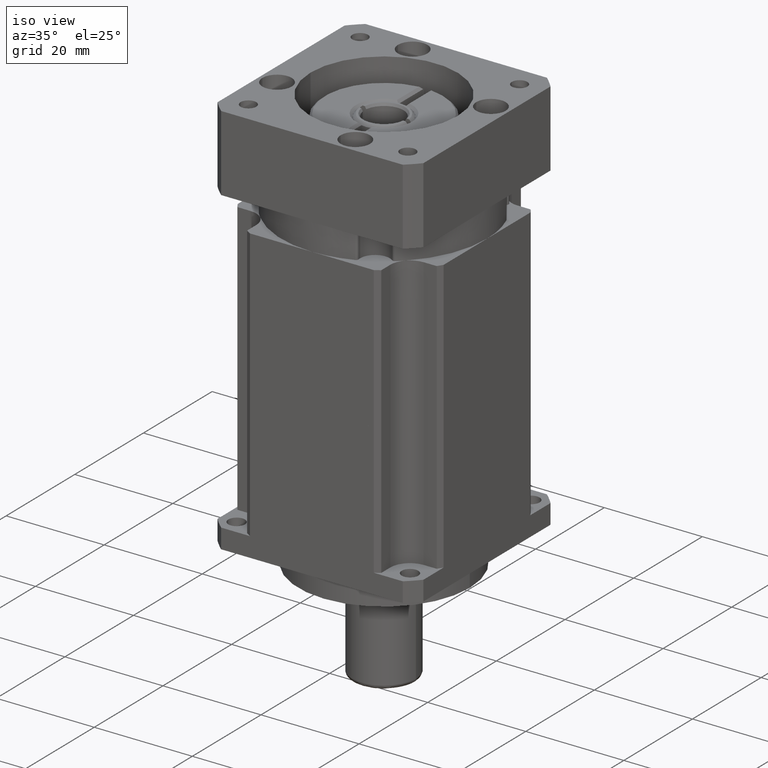
[diagram: clean part render]
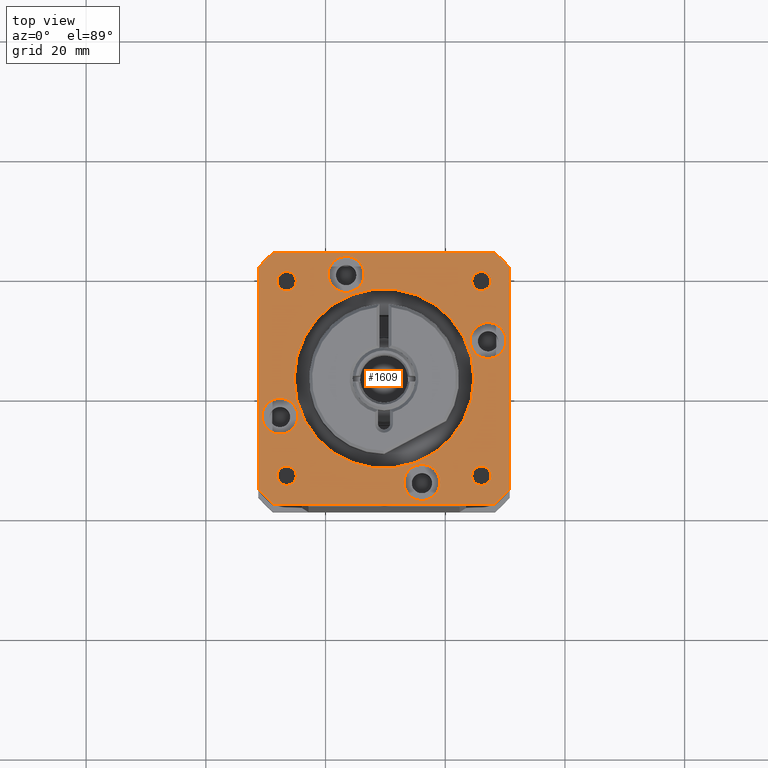
[diagram: tour spotlight — one face highlighted and labeled with its STEP entity id]
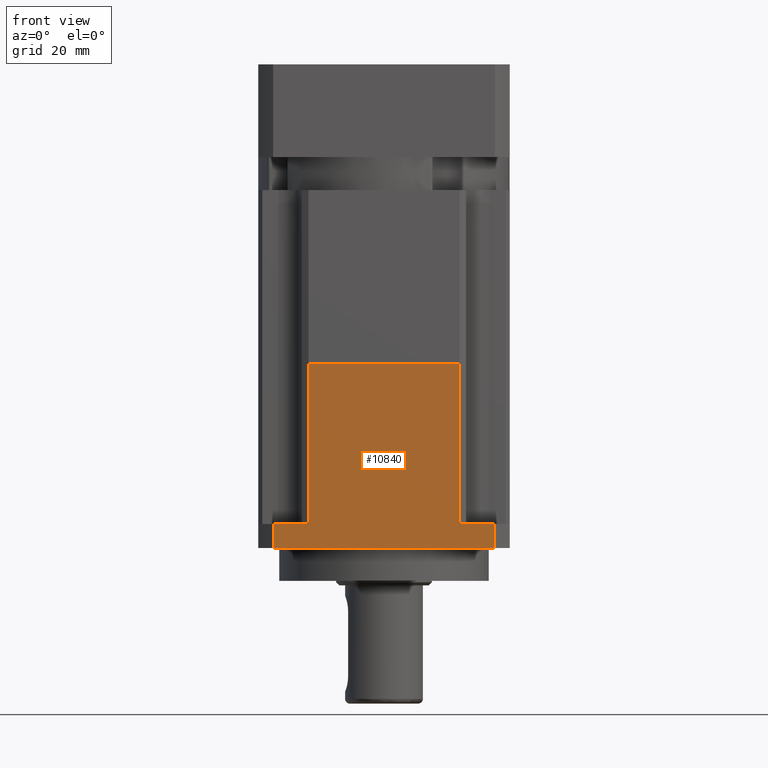
[diagram: tour spotlight — one face highlighted and labeled with its STEP entity id]
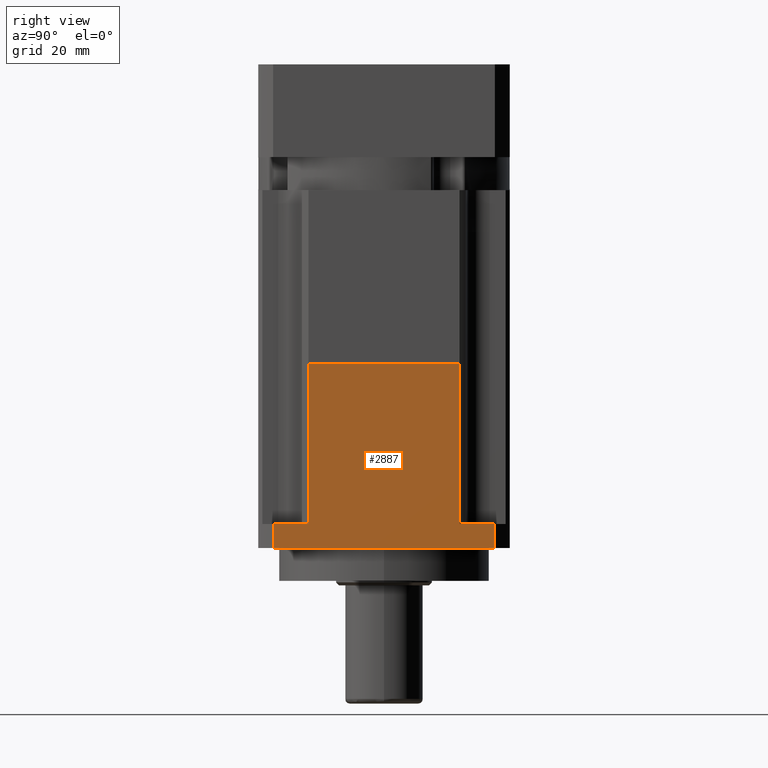
[diagram: tour spotlight — one face highlighted and labeled with its STEP entity id]
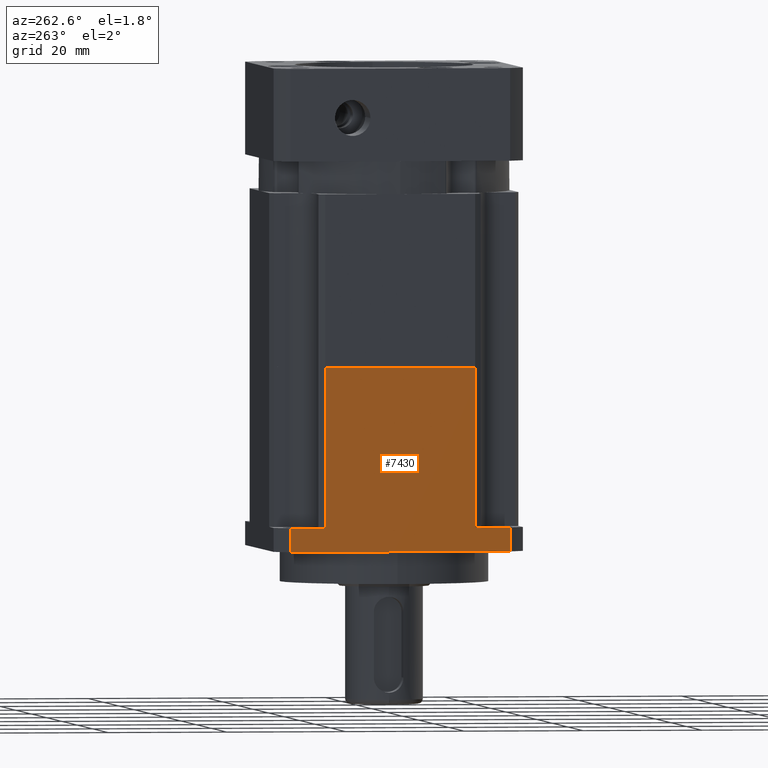
[diagram: tour spotlight — one face highlighted and labeled with its STEP entity id]
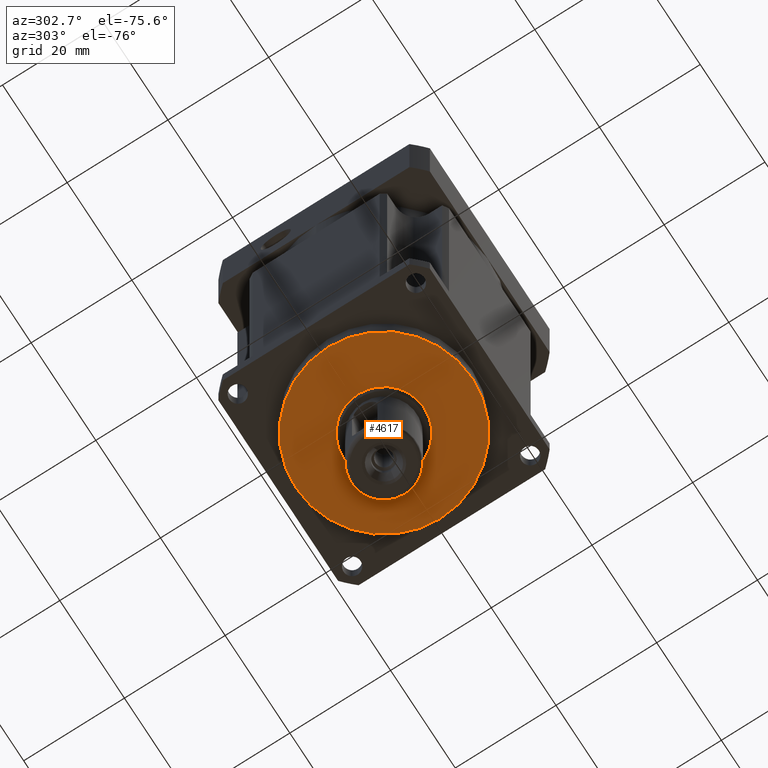
[diagram: tour spotlight — one face highlighted and labeled with its STEP entity id]
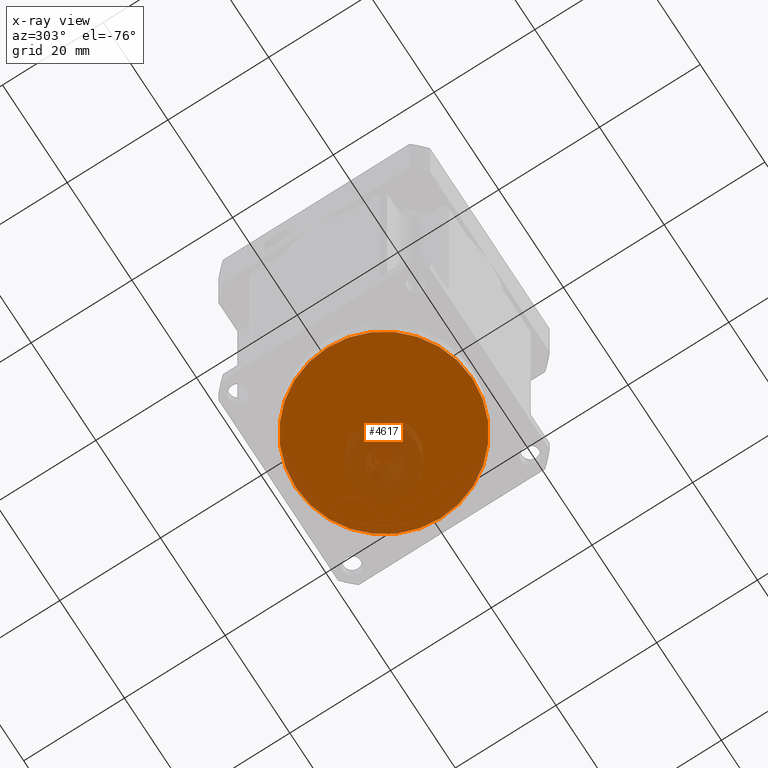
[diagram: x-ray of the same camera — body ghosted, this tour face saturated]
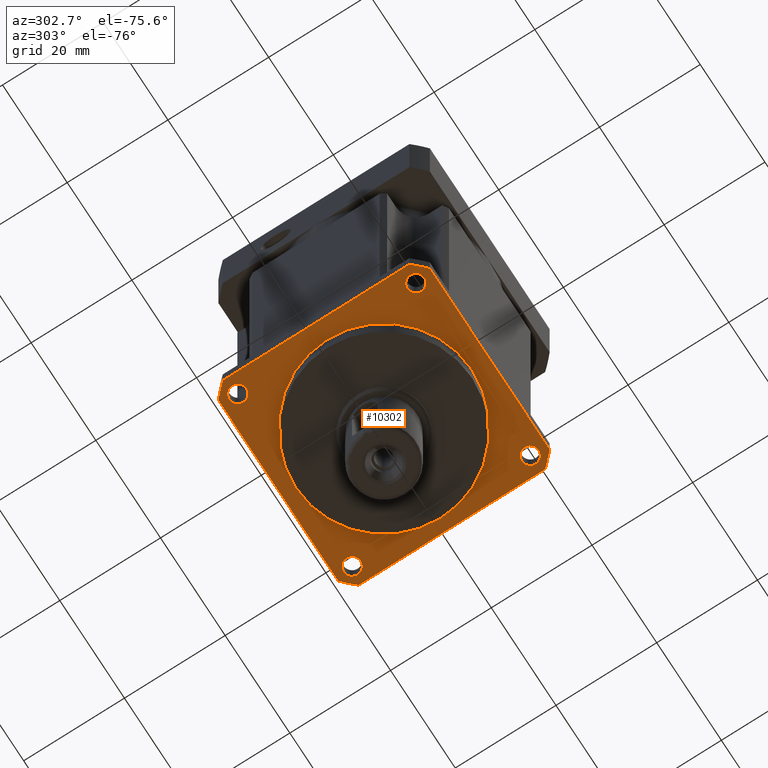
[diagram: tour spotlight — one face highlighted and labeled with its STEP entity id]
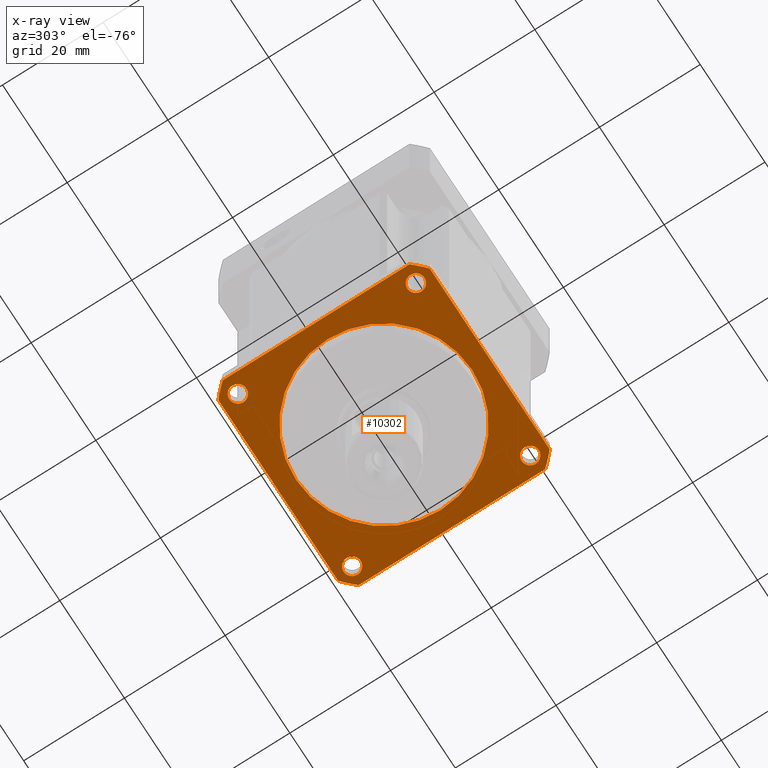
[diagram: x-ray of the same camera — body ghosted, this tour face saturated]
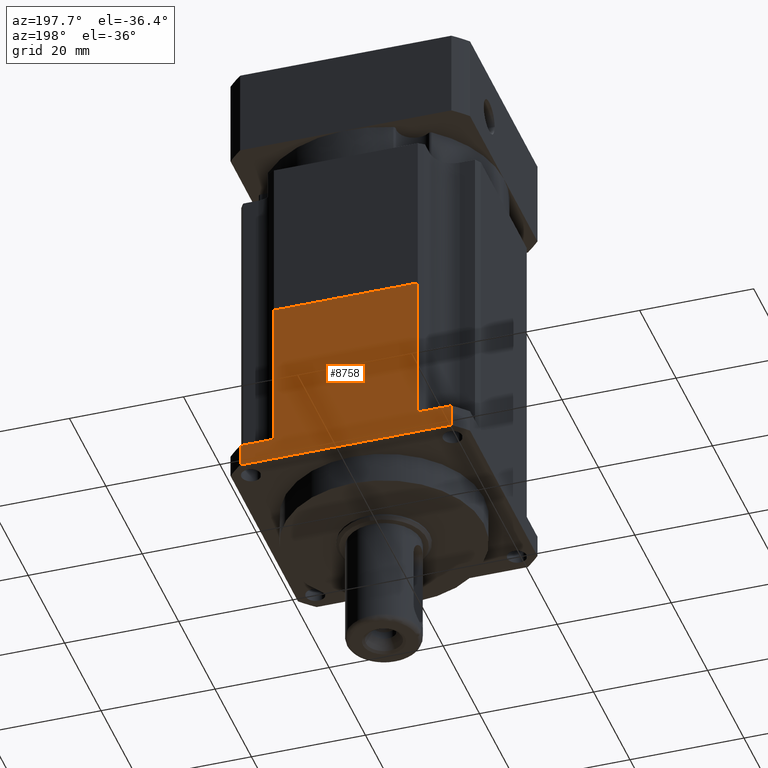
[diagram: tour spotlight — one face highlighted and labeled with its STEP entity id]
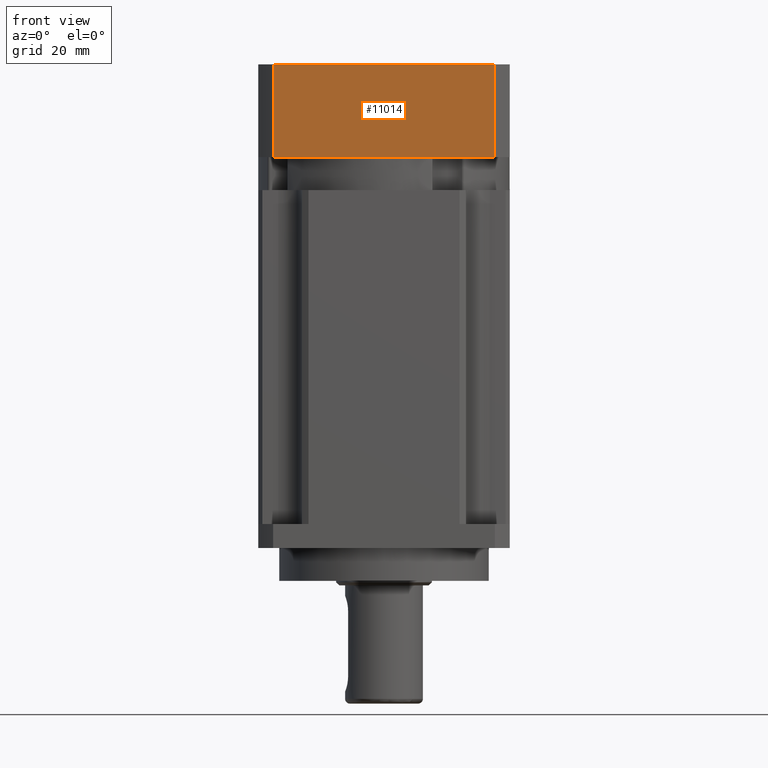
[diagram: tour spotlight — one face highlighted and labeled with its STEP entity id]
A machine part: a face-by-face anatomy tour. The part has 325 B-rep faces; the first image is the clean iso view, then the 8 largest visible faces are spotlighted one at a time (largest first), each with its STEP entity span.

Face 1 — top view, entity #1609. In plain terms, the highlighted planar face has unit normal (0, 0, 1).
Definition (entity closure, byte-faithful):
#148 = DIRECTION ( 'NONE',  ( 0.0000000000000000000, 0.0000000000000000000, -1.000000000000000000 ) ) ;
#328 = VERTEX_POINT ( 'NONE', #4362 ) ;
#382 = CARTESIAN_POINT ( 'NONE',  ( 3.469446951953614200E-015, 15.50000000000000000, 6.938893903907228400E-015 ) ) ;
#400 = DIRECTION ( 'NONE',  ( 0.0000000000000000000, 0.0000000000000000000, 1.000000000000000000 ) ) ;
#461 = DIRECTION ( 'NONE',  ( 0.0000000000000000000, 1.000000000000000000, 0.0000000000000000000 ) ) ;
#513 = CARTESIAN_POINT ( 'NONE',  ( 3.469446951953614200E-015, 15.50000000000000000, 6.938893903907228400E-015 ) ) ;
#529 = CIRCLE ( 'NONE', #9342, 15.00000000000000000 ) ;
#627 = CARTESIAN_POINT ( 'NONE',  ( -16.26345596729059300, 15.50000000000000000, 16.26345596729058600 ) ) ;
#675 = DIRECTION ( 'NONE',  ( -1.000000000000000000, 0.0000000000000000000, 1.040834085586084600E-014 ) ) ;
#754 = CARTESIAN_POINT ( 'NONE',  ( -6.327372651524825600, 15.50000000000000000, -14.38431348453932100 ) ) ;
#755 = DIRECTION ( 'NONE',  ( 1.000000000000000000, 0.0000000000000000000, -4.336808689942015400E-015 ) ) ;
#808 = CIRCLE ( 'NONE', #5423, 27.99999999999999300 ) ;
#811 = ORIENTED_EDGE ( 'NONE', *, *, #4121, .F. ) ;
#822 = CARTESIAN_POINT ( 'NONE',  ( 6.327372651524825600, 15.50000000000000000, 20.38431348453931900 ) ) ;
#836 = EDGE_CURVE ( 'NONE', #4231, #4161, #6305, .T. ) ;
#896 = CARTESIAN_POINT ( 'NONE',  ( -6.327372651524825600, 15.50000000000000000, -20.38431348453931900 ) ) ;
#899 = VERTEX_POINT ( 'NONE', #11070 ) ;
#950 = EDGE_CURVE ( 'NONE', #899, #8193, #8572, .T. ) ;
#966 = CIRCLE ( 'NONE', #2573, 1.600000000000000800 ) ;
#1085 = DIRECTION ( 'NONE',  ( 0.0000000000000000000, 0.0000000000000000000, -1.000000000000000000 ) ) ;
#1100 = EDGE_CURVE ( 'NONE', #4379, #328, #5325, .T. ) ;
#1148 = CARTESIAN_POINT ( 'NONE',  ( -17.38431348453929800, 15.50000000000000000, 3.327372651524886500 ) ) ;
#1182 = EDGE_CURVE ( 'NONE', #2961, #4379, #808, .T. ) ;
#1212 = FACE_OUTER_BOUND ( 'NONE', #11444, .T. ) ;
#1289 = CARTESIAN_POINT ( 'NONE',  ( -20.99999999999998900, 15.50000000000000000, -18.52025917745212500 ) ) ;
#1394 = DIRECTION ( 'NONE',  ( -1.000000000000000000, 0.0000000000000000000, 1.040834085586084600E-014 ) ) ;
#1406 = EDGE_CURVE ( 'NONE', #10578, #2685, #7291, .T. ) ;
#1562 = EDGE_LOOP ( 'NONE', ( #4489, #4669 ) ) ;
#1581 = CARTESIAN_POINT ( 'NONE',  ( 16.26345596729059300, 15.50000000000000000, -14.66345596729058400 ) ) ;
#1609 = ADVANCED_FACE ( 'NONE', ( #9398, #2214, #8831, #6724, #4316, #11218, #7998, #7715, #1212, #10223 ), #6736, .T. ) ;
#1626 = CARTESIAN_POINT ( 'NONE',  ( -16.26345596729059300, 15.50000000000000000, 16.26345596729058600 ) ) ;
#1654 = CARTESIAN_POINT ( 'NONE',  ( 16.26345596729064300, 15.50000000000000000, 16.26345596729054000 ) ) ;
#1722 = EDGE_LOOP ( 'NONE', ( #9312, #8273 ) ) ;
#1760 = CIRCLE ( 'NONE', #11476, 2.999999999999999100 ) ;
#1777 = DIRECTION ( 'NONE',  ( 0.0000000000000000000, 0.0000000000000000000, 1.000000000000000000 ) ) ;
#1791 = AXIS2_PLACEMENT_3D ( 'NONE', #2221, #7626, #8530 ) ;
#1859 = AXIS2_PLACEMENT_3D ( 'NONE', #627, #4998, #8695 ) ;
#1915 = VERTEX_POINT ( 'NONE', #9763 ) ;
#1981 = ORIENTED_EDGE ( 'NONE', *, *, #2156, .F. ) ;
#1985 = CARTESIAN_POINT ( 'NONE',  ( 17.38431348453925600, 15.50000000000000000, -6.327372651525007700 ) ) ;
#2008 = ORIENTED_EDGE ( 'NONE', *, *, #9482, .F. ) ;
#2156 = EDGE_CURVE ( 'NONE', #4716, #9263, #529, .T. ) ;
#2214 = FACE_BOUND ( 'NONE', #8914, .T. ) ;
#2221 = CARTESIAN_POINT ( 'NONE',  ( 3.469446951953614200E-015, 15.50000000000000000, 6.938893903907228400E-015 ) ) ;
#2314 = DIRECTION ( 'NONE',  ( -1.000000000000000000, 0.0000000000000000000, 1.084202172485504000E-014 ) ) ;
#2338 = CIRCLE ( 'NONE', #6660, 1.600000000000000800 ) ;
#2339 = DIRECTION ( 'NONE',  ( 0.0000000000000000000, 1.000000000000000000, 0.0000000000000000000 ) ) ;
#2381 = EDGE_CURVE ( 'NONE', #10076, #11117, #2505, .T. ) ;
#2400 = DIRECTION ( 'NONE',  ( 0.0000000000000000000, 1.000000000000000000, 0.0000000000000000000 ) ) ;
#2401 = ORIENTED_EDGE ( 'NONE', *, *, #1406, .F. ) ;
#2478 = CIRCLE ( 'NONE', #8222, 1.600000000000000800 ) ;
#2504 = CARTESIAN_POINT ( 'NONE',  ( -6.327372651524825600, 15.50000000000000000, -17.38431348453931900 ) ) ;
#2505 = CIRCLE ( 'NONE', #4901, 2.999999999999999100 ) ;
#2544 = DIRECTION ( 'NONE',  ( 0.0000000000000000000, 0.0000000000000000000, 1.000000000000000000 ) ) ;
#2556 = CIRCLE ( 'NONE', #3409, 27.99999999999999600 ) ;
#2570 = ORIENTED_EDGE ( 'NONE', *, *, #11528, .F. ) ;
#2573 = AXIS2_PLACEMENT_3D ( 'NONE', #6064, #2575, #7100 ) ;
#2575 = DIRECTION ( 'NONE',  ( 0.0000000000000000000, 1.000000000000000000, 0.0000000000000000000 ) ) ;
#2630 = CARTESIAN_POINT ( 'NONE',  ( -17.38431348453929800, 15.50000000000000000, 6.327372651524886900 ) ) ;
#2685 = VERTEX_POINT ( 'NONE', #9114 ) ;
#2719 = AXIS2_PLACEMENT_3D ( 'NONE', #3797, #4705, #10990 ) ;
#2772 = CARTESIAN_POINT ( 'NONE',  ( 16.26345596729064300, 15.50000000000000000, 14.66345596729053600 ) ) ;
#2814 = EDGE_CURVE ( 'NONE', #5846, #6074, #4590, .T. ) ;
#2854 = DIRECTION ( 'NONE',  ( -1.000000000000000000, 0.0000000000000000000, 1.084202172485504000E-014 ) ) ;
#2907 = DIRECTION ( 'NONE',  ( 0.0000000000000000000, 1.000000000000000000, 0.0000000000000000000 ) ) ;
#2956 = LINE ( 'NONE', #10498, #7602 ) ;
#2961 = VERTEX_POINT ( 'NONE', #5378 ) ;
#2987 = CIRCLE ( 'NONE', #9733, 1.600000000000000800 ) ;
#3245 = DIRECTION ( 'NONE',  ( -1.000000000000000000, -0.0000000000000000000, -0.0000000000000000000 ) ) ;
#3338 = DIRECTION ( 'NONE',  ( 0.0000000000000000000, 0.0000000000000000000, -1.000000000000000000 ) ) ;
#3409 = AXIS2_PLACEMENT_3D ( 'NONE', #6861, #7928, #7806 ) ;
#3426 = CARTESIAN_POINT ( 'NONE',  ( 6.327372651524825600, 15.50000000000000000, 14.38431348453932100 ) ) ;
#3428 = AXIS2_PLACEMENT_3D ( 'NONE', #2504, #8793, #10441 ) ;
#3503 = EDGE_CURVE ( 'NONE', #9474, #8077, #2478, .T. ) ;
#3529 = DIRECTION ( 'NONE',  ( 1.000000000000000000, 0.0000000000000000000, -3.469446951953615400E-015 ) ) ;
#3563 = CARTESIAN_POINT ( 'NONE',  ( -20.99999999999999600, 15.50000000000000000, -18.52025917745211500 ) ) ;
#3724 = EDGE_CURVE ( 'NONE', #10750, #3739, #4298, .T. ) ;
#3739 = VERTEX_POINT ( 'NONE', #3740 ) ;
#3740 = CARTESIAN_POINT ( 'NONE',  ( -17.38431348453929800, 15.50000000000000000, 9.327372651524886000 ) ) ;
#3797 = CARTESIAN_POINT ( 'NONE',  ( 16.26345596729059300, 15.50000000000000000, -16.26345596729058600 ) ) ;
#3839 = AXIS2_PLACEMENT_3D ( 'NONE', #10746, #5360, #11634 ) ;
#3844 = EDGE_CURVE ( 'NONE', #4161, #4231, #1760, .T. ) ;
#3937 = LINE ( 'NONE', #3563, #8733 ) ;
#4001 = ORIENTED_EDGE ( 'NONE', *, *, #836, .F. ) ;
#4026 = CARTESIAN_POINT ( 'NONE',  ( 16.26345596729059300, 15.50000000000000000, -17.86345596729058700 ) ) ;
#4110 = CARTESIAN_POINT ( 'NONE',  ( 5.306417150674643800E-015, 15.50000000000000000, 15.00000000000000700 ) ) ;
#4121 = EDGE_CURVE ( 'NONE', #2685, #10578, #2338, .T. ) ;
#4161 = VERTEX_POINT ( 'NONE', #822 ) ;
#4231 = VERTEX_POINT ( 'NONE', #3426 ) ;
#4261 = CARTESIAN_POINT ( 'NONE',  ( -18.52025917745212500, 15.50000000000000000, -20.99999999999998900 ) ) ;
#4298 = CIRCLE ( 'NONE', #3839, 2.999999999999999100 ) ;
#4316 = FACE_BOUND ( 'NONE', #1722, .T. ) ;
#4338 = EDGE_CURVE ( 'NONE', #8905, #5820, #7975, .T. ) ;
#4357 = ORIENTED_EDGE ( 'NONE', *, *, #5266, .T. ) ;
#4362 = CARTESIAN_POINT ( 'NONE',  ( -18.52025917745212500, 15.50000000000000000, -20.99999999999998900 ) ) ;
#4379 = VERTEX_POINT ( 'NONE', #9506 ) ;
#4489 = ORIENTED_EDGE ( 'NONE', *, *, #9917, .F. ) ;
#4539 = EDGE_CURVE ( 'NONE', #11117, #10076, #7405, .T. ) ;
#4558 = EDGE_CURVE ( 'NONE', #7059, #5833, #10349, .T. ) ;
#4590 = CIRCLE ( 'NONE', #2719, 1.600000000000000800 ) ;
#4599 = CARTESIAN_POINT ( 'NONE',  ( 6.327372651524825600, 15.50000000000000000, 17.38431348453931900 ) ) ;
#4647 = EDGE_LOOP ( 'NONE', ( #811, #2401 ) ) ;
#4669 = ORIENTED_EDGE ( 'NONE', *, *, #2814, .F. ) ;
#4705 = DIRECTION ( 'NONE',  ( 0.0000000000000000000, 1.000000000000000000, 0.0000000000000000000 ) ) ;
#4716 = VERTEX_POINT ( 'NONE', #4110 ) ;
#4802 = ORIENTED_EDGE ( 'NONE', *, *, #3724, .F. ) ;
#4901 = AXIS2_PLACEMENT_3D ( 'NONE', #11473, #5272, #6249 ) ;
#4998 = DIRECTION ( 'NONE',  ( 0.0000000000000000000, 1.000000000000000000, 0.0000000000000000000 ) ) ;
#5007 = CARTESIAN_POINT ( 'NONE',  ( 20.99999999999998900, 15.50000000000000000, -18.52025917745212900 ) ) ;
#5039 = AXIS2_PLACEMENT_3D ( 'NONE', #5581, #9113, #1085 ) ;
#5135 = CIRCLE ( 'NONE', #8775, 15.00000000000000000 ) ;
#5179 = EDGE_CURVE ( 'NONE', #9263, #4716, #5135, .T. ) ;
#5266 = EDGE_CURVE ( 'NONE', #1915, #2961, #8377, .T. ) ;
#5272 = DIRECTION ( 'NONE',  ( 0.0000000000000000000, 1.000000000000000000, 0.0000000000000000000 ) ) ;
#5325 = LINE ( 'NONE', #4261, #5738 ) ;
#5360 = DIRECTION ( 'NONE',  ( 0.0000000000000000000, 1.000000000000000000, 0.0000000000000000000 ) ) ;
#5378 = CARTESIAN_POINT ( 'NONE',  ( 20.99999999999998900, 15.50000000000000000, -18.52025917745212900 ) ) ;
#5396 = ORIENTED_EDGE ( 'NONE', *, *, #8553, .F. ) ;
#5423 = AXIS2_PLACEMENT_3D ( 'NONE', #7897, #10554, #2544 ) ;
#5551 = CARTESIAN_POINT ( 'NONE',  ( 17.38431348453925600, 15.50000000000000000, -3.327372651525007700 ) ) ;
#5552 = EDGE_LOOP ( 'NONE', ( #7799, #2008 ) ) ;
#5581 = CARTESIAN_POINT ( 'NONE',  ( 6.327372651524825600, 15.50000000000000000, 17.38431348453931900 ) ) ;
#5673 = ORIENTED_EDGE ( 'NONE', *, *, #4539, .F. ) ;
#5706 = ORIENTED_EDGE ( 'NONE', *, *, #950, .T. ) ;
#5738 = VECTOR ( 'NONE', #3245, 1000.000000000000000 ) ;
#5804 = CARTESIAN_POINT ( 'NONE',  ( -16.26345596729059300, 15.50000000000000000, 17.86345596729058700 ) ) ;
#5820 = VERTEX_POINT ( 'NONE', #11254 ) ;
#5833 = VERTEX_POINT ( 'NONE', #5804 ) ;
#5846 = VERTEX_POINT ( 'NONE', #4026 ) ;
#5854 = VERTEX_POINT ( 'NONE', #6749 ) ;
#6050 = DIRECTION ( 'NONE',  ( 0.0000000000000000000, 0.0000000000000000000, 1.000000000000000000 ) ) ;
#6064 = CARTESIAN_POINT ( 'NONE',  ( 16.26345596729064300, 15.50000000000000000, 16.26345596729054000 ) ) ;
#6074 = VERTEX_POINT ( 'NONE', #1581 ) ;
#6249 = DIRECTION ( 'NONE',  ( 0.0000000000000000000, 0.0000000000000000000, 1.000000000000000000 ) ) ;
#6265 = VECTOR ( 'NONE', #6705, 1000.000000000000000 ) ;
#6277 = CARTESIAN_POINT ( 'NONE',  ( -16.26345596729075600, 15.50000000000000000, -16.26345596729042600 ) ) ;
#6305 = CIRCLE ( 'NONE', #5039, 2.999999999999999100 ) ;
#6393 = EDGE_LOOP ( 'NONE', ( #8950, #1981 ) ) ;
#6440 = AXIS2_PLACEMENT_3D ( 'NONE', #1626, #2339, #9543 ) ;
#6538 = CARTESIAN_POINT ( 'NONE',  ( -18.52025917745211800, 15.50000000000000000, 21.00000000000000700 ) ) ;
#6660 = AXIS2_PLACEMENT_3D ( 'NONE', #8729, #10412, #2314 ) ;
#6705 = DIRECTION ( 'NONE',  ( -0.0000000000000000000, -0.0000000000000000000, -1.000000000000000000 ) ) ;
#6724 = FACE_BOUND ( 'NONE', #10165, .T. ) ;
#6736 = PLANE ( 'NONE',  #8589 ) ;
#6740 = CARTESIAN_POINT ( 'NONE',  ( 3.469446951953614200E-015, 15.50000000000000000, -14.99999999999999300 ) ) ;
#6749 = CARTESIAN_POINT ( 'NONE',  ( 18.52025917745212900, 15.50000000000000000, 21.00000000000000400 ) ) ;
#6816 = DIRECTION ( 'NONE',  ( 1.000000000000000000, 0.0000000000000000000, 0.0000000000000000000 ) ) ;
#6819 = DIRECTION ( 'NONE',  ( 0.0000000000000000000, 1.000000000000000000, 0.0000000000000000000 ) ) ;
#6861 = CARTESIAN_POINT ( 'NONE',  ( 3.469446951953614200E-015, 15.50000000000000000, 6.938893903907228400E-015 ) ) ;
#6884 = CARTESIAN_POINT ( 'NONE',  ( 16.26345596729059300, 15.50000000000000000, -16.26345596729058600 ) ) ;
#6922 = DIRECTION ( 'NONE',  ( 0.0000000000000000000, 1.000000000000000000, 0.0000000000000000000 ) ) ;
#7003 = ORIENTED_EDGE ( 'NONE', *, *, #2381, .F. ) ;
#7059 = VERTEX_POINT ( 'NONE', #11323 ) ;
#7093 = ORIENTED_EDGE ( 'NONE', *, *, #1100, .T. ) ;
#7100 = DIRECTION ( 'NONE',  ( 1.000000000000000000, 0.0000000000000000000, -4.336808689942015400E-015 ) ) ;
#7291 = CIRCLE ( 'NONE', #9642, 1.600000000000000800 ) ;
#7405 = CIRCLE ( 'NONE', #3428, 2.999999999999999100 ) ;
#7461 = CIRCLE ( 'NONE', #10563, 2.999999999999999100 ) ;
#7472 = CARTESIAN_POINT ( 'NONE',  ( 3.469446951953614200E-015, 15.50000000000000000, 6.938893903907228400E-015 ) ) ;
#7536 = ORIENTED_EDGE ( 'NONE', *, *, #8490, .T. ) ;
#7602 = VECTOR ( 'NONE', #6816, 1000.000000000000000 ) ;
#7626 = DIRECTION ( 'NONE',  ( 0.0000000000000000000, 1.000000000000000000, 0.0000000000000000000 ) ) ;
#7682 = DIRECTION ( 'NONE',  ( 0.0000000000000000000, 0.0000000000000000000, 1.000000000000000000 ) ) ;
#7715 = FACE_BOUND ( 'NONE', #9279, .T. ) ;
#7771 = AXIS2_PLACEMENT_3D ( 'NONE', #7472, #6922, #6050 ) ;
#7786 = ORIENTED_EDGE ( 'NONE', *, *, #10904, .T. ) ;
#7799 = ORIENTED_EDGE ( 'NONE', *, *, #4338, .F. ) ;
#7806 = DIRECTION ( 'NONE',  ( 0.0000000000000000000, 0.0000000000000000000, 1.000000000000000000 ) ) ;
#7829 = DIRECTION ( 'NONE',  ( 0.0000000000000000000, 1.000000000000000000, 0.0000000000000000000 ) ) ;
#7881 = CARTESIAN_POINT ( 'NONE',  ( 16.26345596729064300, 15.50000000000000000, 17.86345596729054100 ) ) ;
#7897 = CARTESIAN_POINT ( 'NONE',  ( 3.469446951953614200E-015, 15.50000000000000000, 6.938893903907228400E-015 ) ) ;
#7926 = CARTESIAN_POINT ( 'NONE',  ( 17.38431348453925600, 15.50000000000000000, -6.327372651525007700 ) ) ;
#7928 = DIRECTION ( 'NONE',  ( 0.0000000000000000000, 1.000000000000000000, 0.0000000000000000000 ) ) ;
#7975 = CIRCLE ( 'NONE', #8917, 2.999999999999999100 ) ;
#7998 = FACE_BOUND ( 'NONE', #4647, .T. ) ;
#8077 = VERTEX_POINT ( 'NONE', #2772 ) ;
#8148 = CIRCLE ( 'NONE', #8374, 2.999999999999999100 ) ;
#8157 = CIRCLE ( 'NONE', #1859, 1.600000000000000800 ) ;
#8163 = EDGE_CURVE ( 'NONE', #11397, #899, #3937, .T. ) ;
#8193 = VERTEX_POINT ( 'NONE', #6538 ) ;
#8222 = AXIS2_PLACEMENT_3D ( 'NONE', #1654, #11489, #755 ) ;
#8273 = ORIENTED_EDGE ( 'NONE', *, *, #9467, .F. ) ;
#8344 = DIRECTION ( 'NONE',  ( 0.0000000000000000000, 1.000000000000000000, 0.0000000000000000000 ) ) ;
#8374 = AXIS2_PLACEMENT_3D ( 'NONE', #7926, #2400, #675 ) ;
#8377 = LINE ( 'NONE', #5007, #6265 ) ;
#8490 = EDGE_CURVE ( 'NONE', #8193, #5854, #2956, .T. ) ;
#8512 = DIRECTION ( 'NONE',  ( 0.0000000000000000000, -0.0000000000000000000, 1.000000000000000000 ) ) ;
#8517 = CARTESIAN_POINT ( 'NONE',  ( 3.469446951953614200E-015, 15.50000000000000000, 6.938893903907228400E-015 ) ) ;
#8530 = DIRECTION ( 'NONE',  ( 0.0000000000000000000, 0.0000000000000000000, 1.000000000000000000 ) ) ;
#8553 = EDGE_CURVE ( 'NONE', #5833, #7059, #8157, .T. ) ;
#8572 = CIRCLE ( 'NONE', #1791, 27.99999999999999300 ) ;
#8589 = AXIS2_PLACEMENT_3D ( 'NONE', #513, #6819, #8512 ) ;
#8695 = DIRECTION ( 'NONE',  ( 0.0000000000000000000, 0.0000000000000000000, 1.000000000000000000 ) ) ;
#8729 = CARTESIAN_POINT ( 'NONE',  ( -16.26345596729075600, 15.50000000000000000, -16.26345596729042600 ) ) ;
#8733 = VECTOR ( 'NONE', #1777, 1000.000000000000000 ) ;
#8747 = EDGE_LOOP ( 'NONE', ( #2570, #4802 ) ) ;
#8775 = AXIS2_PLACEMENT_3D ( 'NONE', #8517, #11251, #400 ) ;
#8793 = DIRECTION ( 'NONE',  ( 0.0000000000000000000, 1.000000000000000000, 0.0000000000000000000 ) ) ;
#8831 = FACE_BOUND ( 'NONE', #5552, .T. ) ;
#8905 = VERTEX_POINT ( 'NONE', #5551 ) ;
#8914 = EDGE_LOOP ( 'NONE', ( #9507, #4001 ) ) ;
#8917 = AXIS2_PLACEMENT_3D ( 'NONE', #1985, #2907, #1394 ) ;
#8950 = ORIENTED_EDGE ( 'NONE', *, *, #5179, .F. ) ;
#9062 = DIRECTION ( 'NONE',  ( 0.0000000000000000000, 1.000000000000000000, 0.0000000000000000000 ) ) ;
#9113 = DIRECTION ( 'NONE',  ( 0.0000000000000000000, 1.000000000000000000, 0.0000000000000000000 ) ) ;
#9114 = CARTESIAN_POINT ( 'NONE',  ( -16.26345596729075600, 15.50000000000000000, -14.66345596729042300 ) ) ;
#9150 = EDGE_CURVE ( 'NONE', #5854, #1915, #9709, .T. ) ;
#9263 = VERTEX_POINT ( 'NONE', #6740 ) ;
#9279 = EDGE_LOOP ( 'NONE', ( #5396, #10012 ) ) ;
#9312 = ORIENTED_EDGE ( 'NONE', *, *, #3503, .F. ) ;
#9342 = AXIS2_PLACEMENT_3D ( 'NONE', #382, #461, #7682 ) ;
#9398 = FACE_BOUND ( 'NONE', #8747, .T. ) ;
#9423 = ORIENTED_EDGE ( 'NONE', *, *, #8163, .T. ) ;
#9467 = EDGE_CURVE ( 'NONE', #8077, #9474, #966, .T. ) ;
#9474 = VERTEX_POINT ( 'NONE', #7881 ) ;
#9477 = ORIENTED_EDGE ( 'NONE', *, *, #1182, .T. ) ;
#9482 = EDGE_CURVE ( 'NONE', #5820, #8905, #8148, .T. ) ;
#9506 = CARTESIAN_POINT ( 'NONE',  ( 18.52025917745213200, 15.50000000000000000, -20.99999999999998200 ) ) ;
#9507 = ORIENTED_EDGE ( 'NONE', *, *, #3844, .F. ) ;
#9543 = DIRECTION ( 'NONE',  ( 0.0000000000000000000, 0.0000000000000000000, 1.000000000000000000 ) ) ;
#9642 = AXIS2_PLACEMENT_3D ( 'NONE', #6277, #9062, #2854 ) ;
#9709 = CIRCLE ( 'NONE', #7771, 27.99999999999998900 ) ;
#9733 = AXIS2_PLACEMENT_3D ( 'NONE', #6884, #7829, #3338 ) ;
#9763 = CARTESIAN_POINT ( 'NONE',  ( 20.99999999999998900, 15.50000000000000000, 18.52025917745214300 ) ) ;
#9917 = EDGE_CURVE ( 'NONE', #6074, #5846, #2987, .T. ) ;
#10012 = ORIENTED_EDGE ( 'NONE', *, *, #4558, .F. ) ;
#10076 = VERTEX_POINT ( 'NONE', #896 ) ;
#10165 = EDGE_LOOP ( 'NONE', ( #5673, #7003 ) ) ;
#10223 = FACE_BOUND ( 'NONE', #6393, .T. ) ;
#10349 = CIRCLE ( 'NONE', #6440, 1.600000000000000800 ) ;
#10412 = DIRECTION ( 'NONE',  ( 0.0000000000000000000, 1.000000000000000000, 0.0000000000000000000 ) ) ;
#10436 = CARTESIAN_POINT ( 'NONE',  ( -16.26345596729075600, 15.50000000000000000, -17.86345596729042400 ) ) ;
#10441 = DIRECTION ( 'NONE',  ( 0.0000000000000000000, 0.0000000000000000000, 1.000000000000000000 ) ) ;
#10498 = CARTESIAN_POINT ( 'NONE',  ( -18.52025917745212200, 15.50000000000000000, 21.00000000000000400 ) ) ;
#10554 = DIRECTION ( 'NONE',  ( 0.0000000000000000000, 1.000000000000000000, 0.0000000000000000000 ) ) ;
#10563 = AXIS2_PLACEMENT_3D ( 'NONE', #2630, #10712, #3529 ) ;
#10578 = VERTEX_POINT ( 'NONE', #10436 ) ;
#10712 = DIRECTION ( 'NONE',  ( 0.0000000000000000000, 1.000000000000000000, 0.0000000000000000000 ) ) ;
#10746 = CARTESIAN_POINT ( 'NONE',  ( -17.38431348453929800, 15.50000000000000000, 6.327372651524886900 ) ) ;
#10750 = VERTEX_POINT ( 'NONE', #1148 ) ;
#10755 = ORIENTED_EDGE ( 'NONE', *, *, #9150, .T. ) ;
#10904 = EDGE_CURVE ( 'NONE', #328, #11397, #2556, .T. ) ;
#10990 = DIRECTION ( 'NONE',  ( 0.0000000000000000000, 0.0000000000000000000, -1.000000000000000000 ) ) ;
#11070 = CARTESIAN_POINT ( 'NONE',  ( -20.99999999999999600, 15.50000000000000000, 18.52025917745212900 ) ) ;
#11117 = VERTEX_POINT ( 'NONE', #754 ) ;
#11218 = FACE_BOUND ( 'NONE', #1562, .T. ) ;
#11251 = DIRECTION ( 'NONE',  ( 0.0000000000000000000, 1.000000000000000000, 0.0000000000000000000 ) ) ;
#11254 = CARTESIAN_POINT ( 'NONE',  ( 17.38431348453925600, 15.50000000000000000, -9.327372651525008600 ) ) ;
#11323 = CARTESIAN_POINT ( 'NONE',  ( -16.26345596729059300, 15.50000000000000000, 14.66345596729058400 ) ) ;
#11397 = VERTEX_POINT ( 'NONE', #1289 ) ;
#11444 = EDGE_LOOP ( 'NONE', ( #10755, #4357, #9477, #7093, #7786, #9423, #5706, #7536 ) ) ;
#11473 = CARTESIAN_POINT ( 'NONE',  ( -6.327372651524825600, 15.50000000000000000, -17.38431348453931900 ) ) ;
#11476 = AXIS2_PLACEMENT_3D ( 'NONE', #4599, #8344, #148 ) ;
#11489 = DIRECTION ( 'NONE',  ( 0.0000000000000000000, 1.000000000000000000, 0.0000000000000000000 ) ) ;
#11528 = EDGE_CURVE ( 'NONE', #3739, #10750, #7461, .T. ) ;
#11634 = DIRECTION ( 'NONE',  ( 1.000000000000000000, 0.0000000000000000000, -3.469446951953615400E-015 ) ) ;

Face 2 — front view, entity #10840. In plain terms, the highlighted planar face has unit normal (0, 1, 0).
Definition (entity closure, byte-faithful):
#287 = DIRECTION ( 'NONE',  ( -0.0000000000000000000, -0.0000000000000000000, -1.000000000000000000 ) ) ;
#462 = VECTOR ( 'NONE', #2216, 1000.000000000000000 ) ;
#516 = DIRECTION ( 'NONE',  ( 0.0000000000000000000, 1.000000000000000000, -0.0000000000000000000 ) ) ;
#723 = CARTESIAN_POINT ( 'NONE',  ( 3672.124135179250100, 1395.338132565405900, 0.0000000000000000000 ) ) ;
#731 = CARTESIAN_POINT ( 'NONE',  ( 3666.223305205285700, 1395.338132565405900, 0.0000000000000000000 ) ) ;
#926 = CARTESIAN_POINT ( 'NONE',  ( 3672.124135179250100, 1395.338132565405900, -4.000000000000000000 ) ) ;
#1194 = VECTOR ( 'NONE', #11534, 1000.000000000000000 ) ;
#1420 = LINE ( 'NONE', #7866, #11554 ) ;
#1452 = VECTOR ( 'NONE', #5538, 1000.000000000000000 ) ;
#1693 = LINE ( 'NONE', #11027, #8469 ) ;
#2187 = VERTEX_POINT ( 'NONE', #4994 ) ;
#2216 = DIRECTION ( 'NONE',  ( 0.0000000000000000000, 0.0000000000000000000, 1.000000000000000000 ) ) ;
#2420 = AXIS2_PLACEMENT_3D ( 'NONE', #7615, #516, #6743 ) ;
#2704 = FACE_OUTER_BOUND ( 'NONE', #9331, .T. ) ;
#2892 = LINE ( 'NONE', #9739, #1194 ) ;
#3100 = ORIENTED_EDGE ( 'NONE', *, *, #4155, .F. ) ;
#3112 = VERTEX_POINT ( 'NONE', #731 ) ;
#3697 = ORIENTED_EDGE ( 'NONE', *, *, #7345, .F. ) ;
#3916 = DIRECTION ( 'NONE',  ( -0.0000000000000000000, -0.0000000000000000000, -1.000000000000000000 ) ) ;
#4019 = PLANE ( 'NONE',  #2420 ) ;
#4155 = EDGE_CURVE ( 'NONE', #7305, #7134, #11060, .T. ) ;
#4595 = CARTESIAN_POINT ( 'NONE',  ( 3666.223305205285700, 1395.338132565405900, 26.80000000000000100 ) ) ;
#4837 = LINE ( 'NONE', #5498, #1452 ) ;
#4914 = VERTEX_POINT ( 'NONE', #723 ) ;
#4933 = CARTESIAN_POINT ( 'NONE',  ( 3640.984446002736600, 1395.338132565405900, 26.80000000000000100 ) ) ;
#4978 = LINE ( 'NONE', #4933, #462 ) ;
#4994 = CARTESIAN_POINT ( 'NONE',  ( 3635.083616721962700, 1395.338132565405900, -4.000000000000000000 ) ) ;
#5037 = EDGE_CURVE ( 'NONE', #7513, #2187, #2892, .T. ) ;
#5448 = ORIENTED_EDGE ( 'NONE', *, *, #5928, .F. ) ;
#5498 = CARTESIAN_POINT ( 'NONE',  ( 3635.083616773154500, 1395.338132565405900, 26.80000000000000100 ) ) ;
#5538 = DIRECTION ( 'NONE',  ( 0.0000000000000000000, 0.0000000000000000000, 1.000000000000000000 ) ) ;
#5640 = EDGE_CURVE ( 'NONE', #2187, #7305, #4837, .T. ) ;
#5829 = CARTESIAN_POINT ( 'NONE',  ( 3635.926205771973900, 1395.338132565405900, 26.80000000000000100 ) ) ;
#5928 = EDGE_CURVE ( 'NONE', #7134, #6229, #4978, .T. ) ;
#6229 = VERTEX_POINT ( 'NONE', #6269 ) ;
#6269 = CARTESIAN_POINT ( 'NONE',  ( 3640.984445927607300, 1395.338132565405900, 26.80000000000000100 ) ) ;
#6366 = ORIENTED_EDGE ( 'NONE', *, *, #8945, .F. ) ;
#6415 = ORIENTED_EDGE ( 'NONE', *, *, #5640, .F. ) ;
#6623 = LINE ( 'NONE', #5829, #7191 ) ;
#6739 = ORIENTED_EDGE ( 'NONE', *, *, #8346, .F. ) ;
#6743 = DIRECTION ( 'NONE',  ( 0.0000000000000000000, 0.0000000000000000000, 1.000000000000000000 ) ) ;
#7041 = VECTOR ( 'NONE', #3916, 1000.000000000000000 ) ;
#7055 = ORIENTED_EDGE ( 'NONE', *, *, #7748, .F. ) ;
#7134 = VERTEX_POINT ( 'NONE', #8180 ) ;
#7191 = VECTOR ( 'NONE', #9485, 1000.000000000000000 ) ;
#7305 = VERTEX_POINT ( 'NONE', #8609 ) ;
#7345 = EDGE_CURVE ( 'NONE', #3112, #4914, #1420, .T. ) ;
#7451 = LINE ( 'NONE', #7512, #7041 ) ;
#7512 = CARTESIAN_POINT ( 'NONE',  ( 3666.223305205285700, 1395.338132565405900, 26.80000000000000100 ) ) ;
#7513 = VERTEX_POINT ( 'NONE', #926 ) ;
#7615 = CARTESIAN_POINT ( 'NONE',  ( 3666.223305205285700, 1395.338132565405900, 26.80000000000000100 ) ) ;
#7748 = EDGE_CURVE ( 'NONE', #4914, #7513, #1693, .T. ) ;
#7866 = CARTESIAN_POINT ( 'NONE',  ( 3666.223305205285700, 1395.338132565405900, 0.0000000000000000000 ) ) ;
#8180 = CARTESIAN_POINT ( 'NONE',  ( 3640.984445927607300, 1395.338132565405900, 0.0000000000000000000 ) ) ;
#8346 = EDGE_CURVE ( 'NONE', #6229, #9721, #6623, .T. ) ;
#8469 = VECTOR ( 'NONE', #287, 1000.000000000000000 ) ;
#8609 = CARTESIAN_POINT ( 'NONE',  ( 3635.083616721962700, 1395.338132565405900, 0.0000000000000000000 ) ) ;
#8681 = VECTOR ( 'NONE', #8882, 1000.000000000000000 ) ;
#8882 = DIRECTION ( 'NONE',  ( 1.000000000000000000, -0.0000000000000000000, 0.0000000000000000000 ) ) ;
#8945 = EDGE_CURVE ( 'NONE', #9721, #3112, #7451, .T. ) ;
#9331 = EDGE_LOOP ( 'NONE', ( #3100, #6415, #9349, #7055, #3697, #6366, #6739, #5448 ) ) ;
#9349 = ORIENTED_EDGE ( 'NONE', *, *, #5037, .F. ) ;
#9485 = DIRECTION ( 'NONE',  ( 1.000000000000000000, 0.0000000000000000000, -0.0000000000000000000 ) ) ;
#9589 = DIRECTION ( 'NONE',  ( 1.000000000000000000, -0.0000000000000000000, 0.0000000000000000000 ) ) ;
#9721 = VERTEX_POINT ( 'NONE', #4595 ) ;
#9739 = CARTESIAN_POINT ( 'NONE',  ( 3666.223305205285700, 1395.338132565405900, -4.000000000000000000 ) ) ;
#10730 = CARTESIAN_POINT ( 'NONE',  ( 3666.223305205285700, 1395.338132565405900, 0.0000000000000000000 ) ) ;
#10840 = ADVANCED_FACE ( 'NONE', ( #2704 ), #4019, .F. ) ;
#11027 = CARTESIAN_POINT ( 'NONE',  ( 3672.124135128057800, 1395.338132565405900, 26.80000000000000100 ) ) ;
#11060 = LINE ( 'NONE', #10730, #8681 ) ;
#11534 = DIRECTION ( 'NONE',  ( -1.000000000000000000, 0.0000000000000000000, -0.0000000000000000000 ) ) ;
#11554 = VECTOR ( 'NONE', #9589, 1000.000000000000000 ) ;

Face 3 — right view, entity #2887. In plain terms, the highlighted planar face has unit normal (-1, 0, 0).
Definition (entity closure, byte-faithful):
#327 = EDGE_CURVE ( 'NONE', #8594, #3716, #4330, .T. ) ;
#340 = VERTEX_POINT ( 'NONE', #7966 ) ;
#447 = ORIENTED_EDGE ( 'NONE', *, *, #11194, .F. ) ;
#616 = DIRECTION ( 'NONE',  ( -1.000000000000000000, 0.0000000000000000000, 0.0000000000000000000 ) ) ;
#714 = CARTESIAN_POINT ( 'NONE',  ( 3674.603875742843700, 1434.015802563878200, 26.80000000000000100 ) ) ;
#1159 = VERTEX_POINT ( 'NONE', #1699 ) ;
#1195 = DIRECTION ( 'NONE',  ( 0.0000000000000000000, 0.0000000000000000000, 1.000000000000000000 ) ) ;
#1630 = CARTESIAN_POINT ( 'NONE',  ( 3674.603875742843700, 1428.957562478882000, 0.0000000000000000000 ) ) ;
#1699 = CARTESIAN_POINT ( 'NONE',  ( 3674.603875742843700, 1428.957562478882200, 0.0000000000000000000 ) ) ;
#2036 = ORIENTED_EDGE ( 'NONE', *, *, #2154, .F. ) ;
#2154 = EDGE_CURVE ( 'NONE', #6487, #9849, #9121, .T. ) ;
#2418 = DIRECTION ( 'NONE',  ( -0.0000000000000000000, -1.000000000000000000, 0.0000000000000000000 ) ) ;
#2644 = ORIENTED_EDGE ( 'NONE', *, *, #9296, .F. ) ;
#2764 = CARTESIAN_POINT ( 'NONE',  ( 3674.603875742843700, 1428.957562478882000, 26.80000000000000100 ) ) ;
#2800 = VECTOR ( 'NONE', #9528, 1000.000000000000000 ) ;
#2887 = ADVANCED_FACE ( 'NONE', ( #6714 ), #3331, .F. ) ;
#3066 = CARTESIAN_POINT ( 'NONE',  ( 3674.603875742843700, 1434.858391770354500, -4.000000000000000000 ) ) ;
#3113 = CARTESIAN_POINT ( 'NONE',  ( 3674.603875742843700, 1403.718703261121800, 0.0000000000000000000 ) ) ;
#3115 = EDGE_CURVE ( 'NONE', #1159, #6487, #5865, .T. ) ;
#3331 = PLANE ( 'NONE',  #11301 ) ;
#3404 = VERTEX_POINT ( 'NONE', #6948 ) ;
#3445 = ORIENTED_EDGE ( 'NONE', *, *, #4485, .F. ) ;
#3535 = VECTOR ( 'NONE', #10260, 1000.000000000000000 ) ;
#3643 = VECTOR ( 'NONE', #5209, 1000.000000000000000 ) ;
#3716 = VERTEX_POINT ( 'NONE', #10853 ) ;
#4292 = ORIENTED_EDGE ( 'NONE', *, *, #10278, .F. ) ;
#4330 = LINE ( 'NONE', #714, #3643 ) ;
#4485 = EDGE_CURVE ( 'NONE', #9849, #3404, #9373, .T. ) ;
#4495 = LINE ( 'NONE', #9318, #3535 ) ;
#4710 = ORIENTED_EDGE ( 'NONE', *, *, #11368, .F. ) ;
#4740 = CARTESIAN_POINT ( 'NONE',  ( 3674.603875742843700, 1403.718703433990600, 26.80000000000000100 ) ) ;
#5048 = CARTESIAN_POINT ( 'NONE',  ( 3674.603875742843700, 1397.817873297659800, 26.80000000000000100 ) ) ;
#5104 = DIRECTION ( 'NONE',  ( 0.0000000000000000000, 0.0000000000000000000, 1.000000000000000000 ) ) ;
#5209 = DIRECTION ( 'NONE',  ( -0.0000000000000000000, 1.000000000000000000, 0.0000000000000000000 ) ) ;
#5221 = CARTESIAN_POINT ( 'NONE',  ( 3674.603875742843700, 1428.957562478882000, -4.000000000000000000 ) ) ;
#5454 = DIRECTION ( 'NONE',  ( 0.0000000000000000000, 1.000000000000000000, -0.0000000000000000000 ) ) ;
#5480 = LINE ( 'NONE', #5048, #2800 ) ;
#5865 = LINE ( 'NONE', #1630, #10495 ) ;
#6363 = VECTOR ( 'NONE', #1195, 1000.000000000000000 ) ;
#6487 = VERTEX_POINT ( 'NONE', #10379 ) ;
#6609 = CARTESIAN_POINT ( 'NONE',  ( 3674.603875742843700, 1434.858391652564300, 26.80000000000000100 ) ) ;
#6644 = LINE ( 'NONE', #4740, #6363 ) ;
#6714 = FACE_OUTER_BOUND ( 'NONE', #10135, .T. ) ;
#6770 = VECTOR ( 'NONE', #9127, 1000.000000000000000 ) ;
#6828 = VERTEX_POINT ( 'NONE', #3113 ) ;
#6948 = CARTESIAN_POINT ( 'NONE',  ( 3674.603875742843700, 1397.817873179869600, -4.000000000000000000 ) ) ;
#7966 = CARTESIAN_POINT ( 'NONE',  ( 3674.603875742843700, 1397.817873179869600, 0.0000000000000000000 ) ) ;
#8279 = VECTOR ( 'NONE', #10259, 1000.000000000000000 ) ;
#8594 = VERTEX_POINT ( 'NONE', #10417 ) ;
#9121 = LINE ( 'NONE', #6609, #8279 ) ;
#9127 = DIRECTION ( 'NONE',  ( -0.0000000000000000000, -0.0000000000000000000, -1.000000000000000000 ) ) ;
#9274 = ORIENTED_EDGE ( 'NONE', *, *, #3115, .F. ) ;
#9296 = EDGE_CURVE ( 'NONE', #3404, #340, #5480, .T. ) ;
#9318 = CARTESIAN_POINT ( 'NONE',  ( 3674.603875742843700, 1428.957562478882000, 0.0000000000000000000 ) ) ;
#9373 = LINE ( 'NONE', #5221, #10637 ) ;
#9528 = DIRECTION ( 'NONE',  ( 0.0000000000000000000, 0.0000000000000000000, 1.000000000000000000 ) ) ;
#9585 = CARTESIAN_POINT ( 'NONE',  ( 3674.603875742843700, 1428.957562478882000, 26.80000000000000100 ) ) ;
#9849 = VERTEX_POINT ( 'NONE', #3066 ) ;
#10135 = EDGE_LOOP ( 'NONE', ( #4710, #2644, #3445, #2036, #9274, #447, #11531, #4292 ) ) ;
#10259 = DIRECTION ( 'NONE',  ( -0.0000000000000000000, -0.0000000000000000000, -1.000000000000000000 ) ) ;
#10260 = DIRECTION ( 'NONE',  ( 0.0000000000000000000, 1.000000000000000000, -0.0000000000000000000 ) ) ;
#10278 = EDGE_CURVE ( 'NONE', #6828, #8594, #6644, .T. ) ;
#10379 = CARTESIAN_POINT ( 'NONE',  ( 3674.603875742843700, 1434.858391770354500, 0.0000000000000000000 ) ) ;
#10415 = LINE ( 'NONE', #2764, #6770 ) ;
#10417 = CARTESIAN_POINT ( 'NONE',  ( 3674.603875742843700, 1403.718703261121800, 26.80000000000000100 ) ) ;
#10495 = VECTOR ( 'NONE', #5454, 1000.000000000000000 ) ;
#10637 = VECTOR ( 'NONE', #2418, 1000.000000000000000 ) ;
#10853 = CARTESIAN_POINT ( 'NONE',  ( 3674.603875742843700, 1428.957562478882200, 26.80000000000000100 ) ) ;
#11194 = EDGE_CURVE ( 'NONE', #3716, #1159, #10415, .T. ) ;
#11301 = AXIS2_PLACEMENT_3D ( 'NONE', #9585, #616, #5104 ) ;
#11368 = EDGE_CURVE ( 'NONE', #340, #6828, #4495, .T. ) ;
#11531 = ORIENTED_EDGE ( 'NONE', *, *, #327, .F. ) ;

Face 4 — auxiliary view, entity #7430. In plain terms, the highlighted planar face has unit normal (1, 0, 0).
Definition (entity closure, byte-faithful):
#123 = AXIS2_PLACEMENT_3D ( 'NONE', #8837, #11540, #4270 ) ;
#255 = DIRECTION ( 'NONE',  ( -0.0000000000000000000, -0.0000000000000000000, 1.000000000000000000 ) ) ;
#369 = VECTOR ( 'NONE', #6088, 1000.000000000000000 ) ;
#391 = CARTESIAN_POINT ( 'NONE',  ( 3632.603875364589800, 1428.957562994769900, 0.0000000000000000000 ) ) ;
#454 = VECTOR ( 'NONE', #1996, 1000.000000000000000 ) ;
#526 = CARTESIAN_POINT ( 'NONE',  ( 3632.603875364589800, 1428.957562994769900, 26.80000000000000100 ) ) ;
#690 = CARTESIAN_POINT ( 'NONE',  ( 3632.603875364589800, 1397.817873297659800, 26.80000000000000100 ) ) ;
#862 = CARTESIAN_POINT ( 'NONE',  ( 3632.603875364589800, 1434.858391320323800, -4.000000000000000000 ) ) ;
#879 = LINE ( 'NONE', #7399, #454 ) ;
#934 = ORIENTED_EDGE ( 'NONE', *, *, #7974, .F. ) ;
#999 = VECTOR ( 'NONE', #2583, 1000.000000000000000 ) ;
#1153 = LINE ( 'NONE', #10382, #11143 ) ;
#1274 = CARTESIAN_POINT ( 'NONE',  ( 3632.603875364589800, 1397.817873629900300, -4.000000000000000000 ) ) ;
#1410 = LINE ( 'NONE', #2539, #999 ) ;
#1627 = VERTEX_POINT ( 'NONE', #6657 ) ;
#1828 = LINE ( 'NONE', #5173, #3098 ) ;
#1996 = DIRECTION ( 'NONE',  ( 0.0000000000000000000, -1.000000000000000000, -0.0000000000000000000 ) ) ;
#2289 = EDGE_CURVE ( 'NONE', #10845, #4672, #5596, .T. ) ;
#2539 = CARTESIAN_POINT ( 'NONE',  ( 3632.603875364589800, 1434.858391652564300, 26.80000000000000100 ) ) ;
#2583 = DIRECTION ( 'NONE',  ( -0.0000000000000000000, -0.0000000000000000000, 1.000000000000000000 ) ) ;
#2828 = EDGE_CURVE ( 'NONE', #6502, #3452, #3623, .T. ) ;
#3098 = VECTOR ( 'NONE', #9776, 1000.000000000000000 ) ;
#3452 = VERTEX_POINT ( 'NONE', #1274 ) ;
#3623 = LINE ( 'NONE', #690, #369 ) ;
#3789 = ORIENTED_EDGE ( 'NONE', *, *, #6875, .F. ) ;
#3939 = ORIENTED_EDGE ( 'NONE', *, *, #9783, .F. ) ;
#4059 = ORIENTED_EDGE ( 'NONE', *, *, #2289, .F. ) ;
#4198 = DIRECTION ( 'NONE',  ( 0.0000000000000000000, 0.0000000000000000000, -1.000000000000000000 ) ) ;
#4227 = PLANE ( 'NONE',  #123 ) ;
#4228 = VERTEX_POINT ( 'NONE', #862 ) ;
#4270 = DIRECTION ( 'NONE',  ( 0.0000000000000000000, 0.0000000000000000000, -1.000000000000000000 ) ) ;
#4289 = EDGE_CURVE ( 'NONE', #6791, #10566, #5298, .T. ) ;
#4506 = LINE ( 'NONE', #4613, #5654 ) ;
#4613 = CARTESIAN_POINT ( 'NONE',  ( 3632.603875364589800, 1403.718703116533100, -4.000000000000000000 ) ) ;
#4672 = VERTEX_POINT ( 'NONE', #5299 ) ;
#4744 = CARTESIAN_POINT ( 'NONE',  ( 3632.603875364589800, 1428.957563482365500, 26.80000000000000100 ) ) ;
#4891 = CARTESIAN_POINT ( 'NONE',  ( 3632.603875364589800, 1403.718703116533100, 26.80000000000000100 ) ) ;
#5070 = CARTESIAN_POINT ( 'NONE',  ( 3632.603875364589800, 1403.718703116533100, 26.80000000000000100 ) ) ;
#5173 = CARTESIAN_POINT ( 'NONE',  ( 3632.603875364589800, 1434.015802563878200, 26.80000000000000100 ) ) ;
#5298 = LINE ( 'NONE', #4744, #11480 ) ;
#5299 = CARTESIAN_POINT ( 'NONE',  ( 3632.603875364589800, 1403.718703116533100, 0.0000000000000000000 ) ) ;
#5596 = LINE ( 'NONE', #5070, #5872 ) ;
#5654 = VECTOR ( 'NONE', #7341, 1000.000000000000000 ) ;
#5872 = VECTOR ( 'NONE', #4198, 1000.000000000000000 ) ;
#5937 = CARTESIAN_POINT ( 'NONE',  ( 3632.603875364589800, 1397.817873629900300, 0.0000000000000000000 ) ) ;
#6088 = DIRECTION ( 'NONE',  ( 0.0000000000000000000, 0.0000000000000000000, -1.000000000000000000 ) ) ;
#6502 = VERTEX_POINT ( 'NONE', #5937 ) ;
#6657 = CARTESIAN_POINT ( 'NONE',  ( 3632.603875364589800, 1434.858391320323800, 0.0000000000000000000 ) ) ;
#6791 = VERTEX_POINT ( 'NONE', #391 ) ;
#6797 = ORIENTED_EDGE ( 'NONE', *, *, #4289, .F. ) ;
#6875 = EDGE_CURVE ( 'NONE', #1627, #6791, #1153, .T. ) ;
#7107 = ORIENTED_EDGE ( 'NONE', *, *, #10732, .F. ) ;
#7341 = DIRECTION ( 'NONE',  ( -0.0000000000000000000, 1.000000000000000000, 0.0000000000000000000 ) ) ;
#7399 = CARTESIAN_POINT ( 'NONE',  ( 3632.603875364589800, 1403.718703116533100, 0.0000000000000000000 ) ) ;
#7430 = ADVANCED_FACE ( 'NONE', ( #10715 ), #4227, .F. ) ;
#7904 = EDGE_CURVE ( 'NONE', #4228, #1627, #1410, .T. ) ;
#7974 = EDGE_CURVE ( 'NONE', #10566, #10845, #1828, .T. ) ;
#8520 = ORIENTED_EDGE ( 'NONE', *, *, #7904, .F. ) ;
#8837 = CARTESIAN_POINT ( 'NONE',  ( 3632.603875364589800, 1403.718703116533100, 26.80000000000000100 ) ) ;
#8994 = EDGE_LOOP ( 'NONE', ( #3789, #8520, #7107, #9291, #3939, #4059, #934, #6797 ) ) ;
#9291 = ORIENTED_EDGE ( 'NONE', *, *, #2828, .F. ) ;
#9776 = DIRECTION ( 'NONE',  ( 0.0000000000000000000, -1.000000000000000000, -0.0000000000000000000 ) ) ;
#9783 = EDGE_CURVE ( 'NONE', #4672, #6502, #879, .T. ) ;
#10382 = CARTESIAN_POINT ( 'NONE',  ( 3632.603875364589800, 1403.718703116533100, 0.0000000000000000000 ) ) ;
#10566 = VERTEX_POINT ( 'NONE', #526 ) ;
#10715 = FACE_OUTER_BOUND ( 'NONE', #8994, .T. ) ;
#10732 = EDGE_CURVE ( 'NONE', #3452, #4228, #4506, .T. ) ;
#10845 = VERTEX_POINT ( 'NONE', #4891 ) ;
#11134 = DIRECTION ( 'NONE',  ( 0.0000000000000000000, -1.000000000000000000, -0.0000000000000000000 ) ) ;
#11143 = VECTOR ( 'NONE', #11134, 1000.000000000000000 ) ;
#11480 = VECTOR ( 'NONE', #255, 1000.000000000000000 ) ;
#11540 = DIRECTION ( 'NONE',  ( 1.000000000000000000, 0.0000000000000000000, 0.0000000000000000000 ) ) ;

Face 5 — auxiliary view, entity #4617. An x-ray twin of the same camera follows (body ghosted, this face saturated) — the face is partly hidden behind the body. In plain terms, the highlighted planar face has unit normal (0, 0, -1).
Definition (entity closure, byte-faithful):
#359 = FACE_OUTER_BOUND ( 'NONE', #11357, .T. ) ;
#922 = VERTEX_POINT ( 'NONE', #6596 ) ;
#1181 = ORIENTED_EDGE ( 'NONE', *, *, #6814, .F. ) ;
#1546 = DIRECTION ( 'NONE',  ( 1.000000000000000000, 0.0000000000000000000, 0.0000000000000000000 ) ) ;
#3187 = CARTESIAN_POINT ( 'NONE',  ( 3653.603875950606800, 1416.338132475112200, -9.500000000000000000 ) ) ;
#3490 = DIRECTION ( 'NONE',  ( 0.0000000000000000000, 0.0000000000000000000, -1.000000000000000000 ) ) ;
#4375 = DIRECTION ( 'NONE',  ( -1.000000000000000000, 0.0000000000000000000, -0.0000000000000000000 ) ) ;
#4617 = ADVANCED_FACE ( 'N', ( #359 ), #7977, .T. ) ;
#4861 = EDGE_CURVE ( 'NONE', #8059, #922, #9653, .T. ) ;
#5763 = AXIS2_PLACEMENT_3D ( 'NONE', #7817, #8678, #1546 ) ;
#6596 = CARTESIAN_POINT ( 'NONE',  ( 3636.103875950606400, 1416.338132475112200, -9.500000000000000000 ) ) ;
#6814 = EDGE_CURVE ( 'NONE', #922, #8059, #10858, .T. ) ;
#7220 = AXIS2_PLACEMENT_3D ( 'NONE', #3187, #11209, #9487 ) ;
#7423 = ORIENTED_EDGE ( 'NONE', *, *, #4861, .F. ) ;
#7817 = CARTESIAN_POINT ( 'NONE',  ( 3653.603875950606800, 1416.338132475112200, -9.500000000000000000 ) ) ;
#7977 = PLANE ( 'NONE',  #8409 ) ;
#8059 = VERTEX_POINT ( 'NONE', #10671 ) ;
#8409 = AXIS2_PLACEMENT_3D ( 'NONE', #9740, #3490, #4375 ) ;
#8678 = DIRECTION ( 'NONE',  ( -0.0000000000000000000, -0.0000000000000000000, 1.000000000000000000 ) ) ;
#9487 = DIRECTION ( 'NONE',  ( 1.000000000000000000, 0.0000000000000000000, 0.0000000000000000000 ) ) ;
#9653 = CIRCLE ( 'NONE', #5763, 17.50000000000007100 ) ;
#9740 = CARTESIAN_POINT ( 'NONE',  ( 3653.603875950606800, 1416.338132475112200, -9.500000000000000000 ) ) ;
#10671 = CARTESIAN_POINT ( 'NONE',  ( 3671.103875950606800, 1416.338132475112200, -9.500000000000000000 ) ) ;
#10858 = CIRCLE ( 'NONE', #7220, 17.50000000000007100 ) ;
#11209 = DIRECTION ( 'NONE',  ( -0.0000000000000000000, -0.0000000000000000000, 1.000000000000000000 ) ) ;
#11357 = EDGE_LOOP ( 'NONE', ( #7423, #1181 ) ) ;

Face 6 — auxiliary view, entity #10302. An x-ray twin of the same camera follows (body ghosted, this face saturated) — the face is partly hidden behind the body. In plain terms, the highlighted planar face has unit normal (0, 0, -1).
Definition (entity closure, byte-faithful):
#213 = DIRECTION ( 'NONE',  ( -1.000000000000000000, 0.0000000000000000000, 0.0000000000000000000 ) ) ;
#270 = LINE ( 'NONE', #3586, #5765 ) ;
#288 = AXIS2_PLACEMENT_3D ( 'NONE', #3588, #2726, #4475 ) ;
#348 = CIRCLE ( 'NONE', #5618, 17.50000000000007100 ) ;
#354 = EDGE_CURVE ( 'NONE', #7310, #10804, #390, .T. ) ;
#390 = CIRCLE ( 'NONE', #2241, 1.700000000000034800 ) ;
#423 = CARTESIAN_POINT ( 'NONE',  ( 3653.603875950606800, 1416.338132475112200, -4.000000000000000000 ) ) ;
#519 = CIRCLE ( 'NONE', #4739, 1.700000000000034800 ) ;
#522 = AXIS2_PLACEMENT_3D ( 'NONE', #6562, #5011, #9132 ) ;
#571 = AXIS2_PLACEMENT_3D ( 'NONE', #8544, #9444, #5898 ) ;
#639 = EDGE_LOOP ( 'NONE', ( #7978, #11050 ) ) ;
#677 = DIRECTION ( 'NONE',  ( 1.000000000000000000, 0.0000000000000000000, 0.0000000000000000000 ) ) ;
#862 = CARTESIAN_POINT ( 'NONE',  ( 3632.603875364589800, 1434.858391320323800, -4.000000000000000000 ) ) ;
#923 = CARTESIAN_POINT ( 'NONE',  ( 3634.226206420942200, 1398.660462945448700, -4.000000000000000000 ) ) ;
#926 = CARTESIAN_POINT ( 'NONE',  ( 3672.124135179250100, 1395.338132565405900, -4.000000000000000000 ) ) ;
#1037 = EDGE_CURVE ( 'NONE', #3435, #10473, #11638, .T. ) ;
#1061 = ORIENTED_EDGE ( 'NONE', *, *, #8679, .T. ) ;
#1142 = EDGE_LOOP ( 'NONE', ( #9479, #5694, #5934, #10317, #4528, #1061, #6961, #7382 ) ) ;
#1194 = VECTOR ( 'NONE', #11534, 1000.000000000000000 ) ;
#1267 = AXIS2_PLACEMENT_3D ( 'NONE', #7952, #2518, #4431 ) ;
#1274 = CARTESIAN_POINT ( 'NONE',  ( 3632.603875364589800, 1397.817873629900300, -4.000000000000000000 ) ) ;
#1280 = AXIS2_PLACEMENT_3D ( 'NONE', #3990, #1315, #3166 ) ;
#1284 = FACE_BOUND ( 'NONE', #4392, .T. ) ;
#1315 = DIRECTION ( 'NONE',  ( 0.0000000000000000000, 0.0000000000000000000, -1.000000000000000000 ) ) ;
#1371 = EDGE_CURVE ( 'NONE', #3291, #9075, #519, .T. ) ;
#1501 = CARTESIAN_POINT ( 'NONE',  ( 3669.581545480270100, 1398.660462945448700, -4.000000000000000000 ) ) ;
#1563 = CARTESIAN_POINT ( 'NONE',  ( 3653.603875950606800, 1416.338132475112200, -4.000000000000000000 ) ) ;
#1576 = CARTESIAN_POINT ( 'NONE',  ( 3653.603875950606800, 1416.338132475112200, -4.000000000000000000 ) ) ;
#1659 = AXIS2_PLACEMENT_3D ( 'NONE', #7347, #3795, #213 ) ;
#1698 = DIRECTION ( 'NONE',  ( 1.000000000000000000, 0.0000000000000000000, 0.0000000000000000000 ) ) ;
#1784 = DIRECTION ( 'NONE',  ( 0.0000000000000000000, -0.0000000000000000000, 1.000000000000000000 ) ) ;
#1904 = EDGE_CURVE ( 'NONE', #9075, #3291, #1931, .T. ) ;
#1931 = CIRCLE ( 'NONE', #288, 1.700000000000034800 ) ;
#2187 = VERTEX_POINT ( 'NONE', #4994 ) ;
#2213 = CIRCLE ( 'NONE', #1267, 28.00000000000002500 ) ;
#2235 = DIRECTION ( 'NONE',  ( 1.000000000000000000, 6.344131569286602700E-014, 0.0000000000000000000 ) ) ;
#2241 = AXIS2_PLACEMENT_3D ( 'NONE', #7025, #2536, #6990 ) ;
#2418 = DIRECTION ( 'NONE',  ( -0.0000000000000000000, -1.000000000000000000, 0.0000000000000000000 ) ) ;
#2492 = EDGE_CURVE ( 'NONE', #9849, #3926, #2213, .T. ) ;
#2518 = DIRECTION ( 'NONE',  ( -0.0000000000000000000, -0.0000000000000000000, 1.000000000000000000 ) ) ;
#2534 = DIRECTION ( 'NONE',  ( -0.0000000000000000000, -0.0000000000000000000, 1.000000000000000000 ) ) ;
#2536 = DIRECTION ( 'NONE',  ( 0.0000000000000000000, -0.0000000000000000000, 1.000000000000000000 ) ) ;
#2577 = CARTESIAN_POINT ( 'NONE',  ( 3669.581545480270100, 1434.015802004775400, -4.000000000000000000 ) ) ;
#2726 = DIRECTION ( 'NONE',  ( 0.0000000000000000000, 0.0000000000000000000, 1.000000000000000000 ) ) ;
#2810 = DIRECTION ( 'NONE',  ( -1.000000000000000000, 0.0000000000000000000, 0.0000000000000000000 ) ) ;
#2892 = LINE ( 'NONE', #9739, #1194 ) ;
#3005 = AXIS2_PLACEMENT_3D ( 'NONE', #8753, #10439, #8717 ) ;
#3051 = EDGE_CURVE ( 'NONE', #10804, #7310, #4179, .T. ) ;
#3066 = CARTESIAN_POINT ( 'NONE',  ( 3674.603875742843700, 1434.858391770354500, -4.000000000000000000 ) ) ;
#3084 = CARTESIAN_POINT ( 'NONE',  ( 3634.226206420942200, 1434.015802004776300, -4.000000000000000000 ) ) ;
#3166 = DIRECTION ( 'NONE',  ( -1.000000000000000000, 0.0000000000000000000, -0.0000000000000000000 ) ) ;
#3240 = EDGE_LOOP ( 'NONE', ( #8701, #4130 ) ) ;
#3291 = VERTEX_POINT ( 'NONE', #923 ) ;
#3404 = VERTEX_POINT ( 'NONE', #6948 ) ;
#3435 = VERTEX_POINT ( 'NONE', #1501 ) ;
#3452 = VERTEX_POINT ( 'NONE', #1274 ) ;
#3521 = DIRECTION ( 'NONE',  ( -0.0000000000000000000, -0.0000000000000000000, 1.000000000000000000 ) ) ;
#3586 = CARTESIAN_POINT ( 'NONE',  ( 3640.984445859055100, 1437.338132993318100, -4.000000000000000000 ) ) ;
#3588 = CARTESIAN_POINT ( 'NONE',  ( 3635.926206420942000, 1398.660462945448700, -4.000000000000000000 ) ) ;
#3719 = EDGE_LOOP ( 'NONE', ( #11546, #10721 ) ) ;
#3795 = DIRECTION ( 'NONE',  ( 0.0000000000000000000, 0.0000000000000000000, 1.000000000000000000 ) ) ;
#3828 = CIRCLE ( 'NONE', #9508, 28.00000000000002500 ) ;
#3926 = VERTEX_POINT ( 'NONE', #4959 ) ;
#3963 = FACE_BOUND ( 'NONE', #3240, .T. ) ;
#3990 = CARTESIAN_POINT ( 'NONE',  ( 3653.603875950606800, 1416.338132475112200, -4.000000000000000000 ) ) ;
#4005 = EDGE_LOOP ( 'NONE', ( #8616, #8233 ) ) ;
#4021 = CARTESIAN_POINT ( 'NONE',  ( 3671.103875950606800, 1416.338132475112200, -4.000000000000000000 ) ) ;
#4041 = CARTESIAN_POINT ( 'NONE',  ( 3637.626206420942300, 1434.015802004776300, -4.000000000000000000 ) ) ;
#4078 = CIRCLE ( 'NONE', #9057, 28.00000000000002500 ) ;
#4130 = ORIENTED_EDGE ( 'NONE', *, *, #10212, .T. ) ;
#4179 = CIRCLE ( 'NONE', #4826, 1.700000000000034800 ) ;
#4228 = VERTEX_POINT ( 'NONE', #862 ) ;
#4255 = CIRCLE ( 'NONE', #571, 1.700000000000034800 ) ;
#4343 = CARTESIAN_POINT ( 'NONE',  ( 3635.926206420942000, 1434.015802004776300, -4.000000000000000000 ) ) ;
#4392 = EDGE_LOOP ( 'NONE', ( #7058, #6628 ) ) ;
#4431 = DIRECTION ( 'NONE',  ( 1.000000000000000000, 0.0000000000000000000, 0.0000000000000000000 ) ) ;
#4458 = VERTEX_POINT ( 'NONE', #9347 ) ;
#4475 = DIRECTION ( 'NONE',  ( -1.000000000000000000, 0.0000000000000000000, 0.0000000000000000000 ) ) ;
#4485 = EDGE_CURVE ( 'NONE', #9849, #3404, #9373, .T. ) ;
#4490 = CARTESIAN_POINT ( 'NONE',  ( 3635.083617066949500, 1437.338132993318100, -4.000000000000000000 ) ) ;
#4506 = LINE ( 'NONE', #4613, #5654 ) ;
#4522 = CARTESIAN_POINT ( 'NONE',  ( 3637.626206420942300, 1398.660462945448700, -4.000000000000000000 ) ) ;
#4528 = ORIENTED_EDGE ( 'NONE', *, *, #9976, .T. ) ;
#4613 = CARTESIAN_POINT ( 'NONE',  ( 3632.603875364589800, 1403.718703116533100, -4.000000000000000000 ) ) ;
#4636 = CARTESIAN_POINT ( 'NONE',  ( 3671.281545480270300, 1434.015802004775400, -4.000000000000000000 ) ) ;
#4739 = AXIS2_PLACEMENT_3D ( 'NONE', #5489, #5371, #2810 ) ;
#4826 = AXIS2_PLACEMENT_3D ( 'NONE', #4343, #1784, #8949 ) ;
#4950 = EDGE_CURVE ( 'NONE', #5264, #7177, #348, .T. ) ;
#4959 = CARTESIAN_POINT ( 'NONE',  ( 3672.124134834263300, 1437.338132993318100, -4.000000000000000000 ) ) ;
#4994 = CARTESIAN_POINT ( 'NONE',  ( 3635.083616721962700, 1395.338132565405900, -4.000000000000000000 ) ) ;
#5011 = DIRECTION ( 'NONE',  ( 0.0000000000000000000, 0.0000000000000000000, -1.000000000000000000 ) ) ;
#5037 = EDGE_CURVE ( 'NONE', #7513, #2187, #2892, .T. ) ;
#5221 = CARTESIAN_POINT ( 'NONE',  ( 3674.603875742843700, 1428.957562478882000, -4.000000000000000000 ) ) ;
#5264 = VERTEX_POINT ( 'NONE', #4021 ) ;
#5371 = DIRECTION ( 'NONE',  ( 0.0000000000000000000, 0.0000000000000000000, 1.000000000000000000 ) ) ;
#5489 = CARTESIAN_POINT ( 'NONE',  ( 3635.926206420942000, 1398.660462945448700, -4.000000000000000000 ) ) ;
#5523 = FACE_OUTER_BOUND ( 'NONE', #1142, .T. ) ;
#5618 = AXIS2_PLACEMENT_3D ( 'NONE', #8983, #3521, #1698 ) ;
#5654 = VECTOR ( 'NONE', #7341, 1000.000000000000000 ) ;
#5694 = ORIENTED_EDGE ( 'NONE', *, *, #5037, .T. ) ;
#5765 = VECTOR ( 'NONE', #8068, 1000.000000000000000 ) ;
#5898 = DIRECTION ( 'NONE',  ( -1.000000000000000000, 0.0000000000000000000, 0.0000000000000000000 ) ) ;
#5921 = CIRCLE ( 'NONE', #10036, 1.700000000000034800 ) ;
#5934 = ORIENTED_EDGE ( 'NONE', *, *, #9166, .T. ) ;
#6416 = DIRECTION ( 'NONE',  ( 0.0000000000000000000, 0.0000000000000000000, 1.000000000000000000 ) ) ;
#6517 = EDGE_CURVE ( 'NONE', #4458, #11161, #4255, .T. ) ;
#6562 = CARTESIAN_POINT ( 'NONE',  ( 3653.603875950606800, 1416.338132475112200, -4.000000000000000000 ) ) ;
#6628 = ORIENTED_EDGE ( 'NONE', *, *, #10970, .T. ) ;
#6643 = AXIS2_PLACEMENT_3D ( 'NONE', #1576, #2534, #677 ) ;
#6728 = DIRECTION ( 'NONE',  ( 0.0000000000000000000, 0.0000000000000000000, -1.000000000000000000 ) ) ;
#6948 = CARTESIAN_POINT ( 'NONE',  ( 3674.603875742843700, 1397.817873179869600, -4.000000000000000000 ) ) ;
#6961 = ORIENTED_EDGE ( 'NONE', *, *, #2492, .F. ) ;
#6990 = DIRECTION ( 'NONE',  ( -1.000000000000000000, 0.0000000000000000000, 0.0000000000000000000 ) ) ;
#7025 = CARTESIAN_POINT ( 'NONE',  ( 3635.926206420942000, 1434.015802004776300, -4.000000000000000000 ) ) ;
#7058 = ORIENTED_EDGE ( 'NONE', *, *, #4950, .T. ) ;
#7177 = VERTEX_POINT ( 'NONE', #9084 ) ;
#7310 = VERTEX_POINT ( 'NONE', #4041 ) ;
#7318 = CIRCLE ( 'NONE', #522, 28.00000000000002500 ) ;
#7341 = DIRECTION ( 'NONE',  ( -0.0000000000000000000, 1.000000000000000000, 0.0000000000000000000 ) ) ;
#7347 = CARTESIAN_POINT ( 'NONE',  ( 3671.281545480270300, 1398.660462945448700, -4.000000000000000000 ) ) ;
#7382 = ORIENTED_EDGE ( 'NONE', *, *, #4485, .T. ) ;
#7513 = VERTEX_POINT ( 'NONE', #926 ) ;
#7586 = CARTESIAN_POINT ( 'NONE',  ( 3672.981545480270100, 1398.660462945448700, -4.000000000000000000 ) ) ;
#7637 = CIRCLE ( 'NONE', #1659, 1.700000000000034800 ) ;
#7867 = DIRECTION ( 'NONE',  ( 1.000000000000000000, -1.348127958473403300E-013, 0.0000000000000000000 ) ) ;
#7952 = CARTESIAN_POINT ( 'NONE',  ( 3653.603875950606800, 1416.338132475112200, -4.000000000000000000 ) ) ;
#7978 = ORIENTED_EDGE ( 'NONE', *, *, #3051, .T. ) ;
#8068 = DIRECTION ( 'NONE',  ( 1.000000000000000000, 0.0000000000000000000, 0.0000000000000000000 ) ) ;
#8164 = CIRCLE ( 'NONE', #6643, 17.50000000000007100 ) ;
#8188 = FACE_BOUND ( 'NONE', #639, .T. ) ;
#8233 = ORIENTED_EDGE ( 'NONE', *, *, #6517, .T. ) ;
#8298 = DIRECTION ( 'NONE',  ( -1.000000000000000000, 0.0000000000000000000, 0.0000000000000000000 ) ) ;
#8486 = PLANE ( 'NONE',  #1280 ) ;
#8544 = CARTESIAN_POINT ( 'NONE',  ( 3671.281545480270300, 1434.015802004775400, -4.000000000000000000 ) ) ;
#8616 = ORIENTED_EDGE ( 'NONE', *, *, #11280, .T. ) ;
#8679 = EDGE_CURVE ( 'NONE', #11586, #3926, #270, .T. ) ;
#8701 = ORIENTED_EDGE ( 'NONE', *, *, #1037, .T. ) ;
#8717 = DIRECTION ( 'NONE',  ( -1.000000000000000000, 0.0000000000000000000, 0.0000000000000000000 ) ) ;
#8753 = CARTESIAN_POINT ( 'NONE',  ( 3671.281545480270300, 1398.660462945448700, -4.000000000000000000 ) ) ;
#8949 = DIRECTION ( 'NONE',  ( -1.000000000000000000, 0.0000000000000000000, 0.0000000000000000000 ) ) ;
#8983 = CARTESIAN_POINT ( 'NONE',  ( 3653.603875950606800, 1416.338132475112200, -4.000000000000000000 ) ) ;
#9039 = FACE_BOUND ( 'NONE', #3719, .T. ) ;
#9057 = AXIS2_PLACEMENT_3D ( 'NONE', #423, #6728, #2235 ) ;
#9075 = VERTEX_POINT ( 'NONE', #4522 ) ;
#9084 = CARTESIAN_POINT ( 'NONE',  ( 3636.103875950606400, 1416.338132475112200, -4.000000000000000000 ) ) ;
#9132 = DIRECTION ( 'NONE',  ( 1.000000000000000000, -2.537652627714641100E-013, 0.0000000000000000000 ) ) ;
#9166 = EDGE_CURVE ( 'NONE', #2187, #3452, #7318, .T. ) ;
#9347 = CARTESIAN_POINT ( 'NONE',  ( 3672.981545480270100, 1434.015802004775400, -4.000000000000000000 ) ) ;
#9373 = LINE ( 'NONE', #5221, #10637 ) ;
#9444 = DIRECTION ( 'NONE',  ( 0.0000000000000000000, 0.0000000000000000000, 1.000000000000000000 ) ) ;
#9479 = ORIENTED_EDGE ( 'NONE', *, *, #11458, .T. ) ;
#9508 = AXIS2_PLACEMENT_3D ( 'NONE', #1563, #11619, #7867 ) ;
#9739 = CARTESIAN_POINT ( 'NONE',  ( 3666.223305205285700, 1395.338132565405900, -4.000000000000000000 ) ) ;
#9849 = VERTEX_POINT ( 'NONE', #3066 ) ;
#9976 = EDGE_CURVE ( 'NONE', #4228, #11586, #3828, .T. ) ;
#10036 = AXIS2_PLACEMENT_3D ( 'NONE', #4636, #6416, #8298 ) ;
#10212 = EDGE_CURVE ( 'NONE', #10473, #3435, #7637, .T. ) ;
#10302 = ADVANCED_FACE ( 'NONE', ( #5523, #1284, #10575, #3963, #9039, #8188 ), #8486, .T. ) ;
#10317 = ORIENTED_EDGE ( 'NONE', *, *, #10732, .T. ) ;
#10439 = DIRECTION ( 'NONE',  ( 0.0000000000000000000, 0.0000000000000000000, 1.000000000000000000 ) ) ;
#10473 = VERTEX_POINT ( 'NONE', #7586 ) ;
#10575 = FACE_BOUND ( 'NONE', #4005, .T. ) ;
#10637 = VECTOR ( 'NONE', #2418, 1000.000000000000000 ) ;
#10721 = ORIENTED_EDGE ( 'NONE', *, *, #1904, .T. ) ;
#10732 = EDGE_CURVE ( 'NONE', #3452, #4228, #4506, .T. ) ;
#10804 = VERTEX_POINT ( 'NONE', #3084 ) ;
#10970 = EDGE_CURVE ( 'NONE', #7177, #5264, #8164, .T. ) ;
#11050 = ORIENTED_EDGE ( 'NONE', *, *, #354, .T. ) ;
#11161 = VERTEX_POINT ( 'NONE', #2577 ) ;
#11280 = EDGE_CURVE ( 'NONE', #11161, #4458, #5921, .T. ) ;
#11458 = EDGE_CURVE ( 'NONE', #3404, #7513, #4078, .T. ) ;
#11534 = DIRECTION ( 'NONE',  ( -1.000000000000000000, 0.0000000000000000000, -0.0000000000000000000 ) ) ;
#11546 = ORIENTED_EDGE ( 'NONE', *, *, #1371, .T. ) ;
#11586 = VERTEX_POINT ( 'NONE', #4490 ) ;
#11619 = DIRECTION ( 'NONE',  ( 0.0000000000000000000, 0.0000000000000000000, -1.000000000000000000 ) ) ;
#11638 = CIRCLE ( 'NONE', #3005, 1.700000000000034800 ) ;

Face 7 — auxiliary view, entity #8758. In plain terms, the highlighted planar face has unit normal (0, -1, 0).
Definition (entity closure, byte-faithful):
#11 = LINE ( 'NONE', #6576, #9289 ) ;
#87 = CARTESIAN_POINT ( 'NONE',  ( 3640.984445859055100, 1437.338132993318100, 26.80000000000000100 ) ) ;
#157 = DIRECTION ( 'NONE',  ( 0.0000000000000000000, -0.0000000000000000000, -1.000000000000000000 ) ) ;
#270 = LINE ( 'NONE', #3586, #5765 ) ;
#784 = VECTOR ( 'NONE', #5810, 1000.000000000000000 ) ;
#845 = FACE_OUTER_BOUND ( 'NONE', #1163, .T. ) ;
#865 = CARTESIAN_POINT ( 'NONE',  ( 3640.984445859055100, 1437.338132993318100, 26.80000000000000100 ) ) ;
#1163 = EDGE_LOOP ( 'NONE', ( #8898, #10674, #7548, #5105, #4280, #4364, #11250, #5241 ) ) ;
#1218 = CARTESIAN_POINT ( 'NONE',  ( 3640.984445859055100, 1437.338132993318100, 0.0000000000000000000 ) ) ;
#1269 = CARTESIAN_POINT ( 'NONE',  ( 3635.083616773153600, 1437.338132993318100, 26.80000000000000100 ) ) ;
#1663 = CARTESIAN_POINT ( 'NONE',  ( 3635.926205771973900, 1437.338132993318100, 26.80000000000000100 ) ) ;
#1978 = CARTESIAN_POINT ( 'NONE',  ( 3672.124134834263300, 1437.338132993318100, 0.0000000000000000000 ) ) ;
#2231 = CARTESIAN_POINT ( 'NONE',  ( 3666.223305643031400, 1437.338132993318100, 0.0000000000000000000 ) ) ;
#2283 = LINE ( 'NONE', #1218, #5102 ) ;
#2567 = VECTOR ( 'NONE', #6754, 1000.000000000000000 ) ;
#2674 = DIRECTION ( 'NONE',  ( -0.0000000000000000000, 0.0000000000000000000, 1.000000000000000000 ) ) ;
#2684 = DIRECTION ( 'NONE',  ( 0.0000000000000000000, -1.000000000000000000, 0.0000000000000000000 ) ) ;
#2705 = VECTOR ( 'NONE', #2674, 1000.000000000000000 ) ;
#3052 = CARTESIAN_POINT ( 'NONE',  ( 3666.223306074204600, 1437.338132993318100, 26.80000000000000100 ) ) ;
#3225 = VERTEX_POINT ( 'NONE', #10830 ) ;
#3299 = AXIS2_PLACEMENT_3D ( 'NONE', #865, #2684, #5199 ) ;
#3396 = VECTOR ( 'NONE', #7112, 1000.000000000000000 ) ;
#3431 = PLANE ( 'NONE',  #3299 ) ;
#3528 = CARTESIAN_POINT ( 'NONE',  ( 3640.984445859055100, 1437.338132993318100, 0.0000000000000000000 ) ) ;
#3586 = CARTESIAN_POINT ( 'NONE',  ( 3640.984445859055100, 1437.338132993318100, -4.000000000000000000 ) ) ;
#3688 = LINE ( 'NONE', #1269, #4666 ) ;
#3859 = VERTEX_POINT ( 'NONE', #4753 ) ;
#3926 = VERTEX_POINT ( 'NONE', #4959 ) ;
#4280 = ORIENTED_EDGE ( 'NONE', *, *, #6763, .F. ) ;
#4364 = ORIENTED_EDGE ( 'NONE', *, *, #8326, .F. ) ;
#4410 = EDGE_CURVE ( 'NONE', #10279, #7229, #6139, .T. ) ;
#4490 = CARTESIAN_POINT ( 'NONE',  ( 3635.083617066949500, 1437.338132993318100, -4.000000000000000000 ) ) ;
#4641 = VERTEX_POINT ( 'NONE', #3528 ) ;
#4666 = VECTOR ( 'NONE', #6713, 1000.000000000000000 ) ;
#4753 = CARTESIAN_POINT ( 'NONE',  ( 3635.083617066949500, 1437.338132993318100, 0.0000000000000000000 ) ) ;
#4959 = CARTESIAN_POINT ( 'NONE',  ( 3672.124134834263300, 1437.338132993318100, -4.000000000000000000 ) ) ;
#5102 = VECTOR ( 'NONE', #7527, 1000.000000000000000 ) ;
#5105 = ORIENTED_EDGE ( 'NONE', *, *, #10296, .F. ) ;
#5110 = VERTEX_POINT ( 'NONE', #87 ) ;
#5199 = DIRECTION ( 'NONE',  ( 0.0000000000000000000, -0.0000000000000000000, -1.000000000000000000 ) ) ;
#5241 = ORIENTED_EDGE ( 'NONE', *, *, #10405, .F. ) ;
#5765 = VECTOR ( 'NONE', #8068, 1000.000000000000000 ) ;
#5810 = DIRECTION ( 'NONE',  ( -1.000000000000000000, -0.0000000000000000000, -0.0000000000000000000 ) ) ;
#6139 = LINE ( 'NONE', #10402, #784 ) ;
#6576 = CARTESIAN_POINT ( 'NONE',  ( 3640.984445859055100, 1437.338132993318100, 26.80000000000000100 ) ) ;
#6713 = DIRECTION ( 'NONE',  ( 0.0000000000000000000, -0.0000000000000000000, -1.000000000000000000 ) ) ;
#6754 = DIRECTION ( 'NONE',  ( -0.0000000000000000000, 0.0000000000000000000, 1.000000000000000000 ) ) ;
#6763 = EDGE_CURVE ( 'NONE', #4641, #3859, #2283, .T. ) ;
#6935 = LINE ( 'NONE', #3052, #2567 ) ;
#7112 = DIRECTION ( 'NONE',  ( -1.000000000000000000, -0.0000000000000000000, 0.0000000000000000000 ) ) ;
#7229 = VERTEX_POINT ( 'NONE', #2231 ) ;
#7522 = EDGE_CURVE ( 'NONE', #3926, #10279, #7768, .T. ) ;
#7527 = DIRECTION ( 'NONE',  ( -1.000000000000000000, -0.0000000000000000000, -0.0000000000000000000 ) ) ;
#7548 = ORIENTED_EDGE ( 'NONE', *, *, #8679, .F. ) ;
#7768 = LINE ( 'NONE', #8094, #2705 ) ;
#8068 = DIRECTION ( 'NONE',  ( 1.000000000000000000, 0.0000000000000000000, 0.0000000000000000000 ) ) ;
#8094 = CARTESIAN_POINT ( 'NONE',  ( 3672.124135128058700, 1437.338132993318100, 26.80000000000000100 ) ) ;
#8326 = EDGE_CURVE ( 'NONE', #5110, #4641, #11, .T. ) ;
#8679 = EDGE_CURVE ( 'NONE', #11586, #3926, #270, .T. ) ;
#8758 = ADVANCED_FACE ( 'NONE', ( #845 ), #3431, .F. ) ;
#8898 = ORIENTED_EDGE ( 'NONE', *, *, #4410, .F. ) ;
#9289 = VECTOR ( 'NONE', #157, 1000.000000000000000 ) ;
#9301 = LINE ( 'NONE', #1663, #3396 ) ;
#10279 = VERTEX_POINT ( 'NONE', #1978 ) ;
#10296 = EDGE_CURVE ( 'NONE', #3859, #11586, #3688, .T. ) ;
#10402 = CARTESIAN_POINT ( 'NONE',  ( 3640.984445859055100, 1437.338132993318100, 0.0000000000000000000 ) ) ;
#10405 = EDGE_CURVE ( 'NONE', #7229, #3225, #6935, .T. ) ;
#10649 = EDGE_CURVE ( 'NONE', #3225, #5110, #9301, .T. ) ;
#10674 = ORIENTED_EDGE ( 'NONE', *, *, #7522, .F. ) ;
#10830 = CARTESIAN_POINT ( 'NONE',  ( 3666.223305643031400, 1437.338132993318100, 26.80000000000000100 ) ) ;
#11250 = ORIENTED_EDGE ( 'NONE', *, *, #10649, .F. ) ;
#11586 = VERTEX_POINT ( 'NONE', #4490 ) ;

Face 8 — front view, entity #11014. In plain terms, the highlighted planar face has unit normal (0, 1, 0).
Definition (entity closure, byte-faithful):
#5 = ORIENTED_EDGE ( 'NONE', *, *, #3333, .T. ) ;
#584 = EDGE_CURVE ( 'NONE', #2961, #9703, #4615, .T. ) ;
#634 = PLANE ( 'NONE',  #5222 ) ;
#1635 = VECTOR ( 'NONE', #8402, 1000.000000000000000 ) ;
#1915 = VERTEX_POINT ( 'NONE', #9763 ) ;
#2277 = ORIENTED_EDGE ( 'NONE', *, *, #5266, .F. ) ;
#2280 = VERTEX_POINT ( 'NONE', #10452 ) ;
#2961 = VERTEX_POINT ( 'NONE', #5378 ) ;
#3333 = EDGE_CURVE ( 'NONE', #2280, #9703, #9941, .T. ) ;
#3392 = DIRECTION ( 'NONE',  ( 0.0000000000000000000, 0.0000000000000000000, 1.000000000000000000 ) ) ;
#3764 = DIRECTION ( 'NONE',  ( -0.0000000000000000000, -1.000000000000000000, -0.0000000000000000000 ) ) ;
#4339 = EDGE_CURVE ( 'NONE', #1915, #2280, #7129, .T. ) ;
#4615 = LINE ( 'NONE', #9074, #4761 ) ;
#4761 = VECTOR ( 'NONE', #10839, 1000.000000000000000 ) ;
#4868 = VECTOR ( 'NONE', #3764, 1000.000000000000000 ) ;
#5007 = CARTESIAN_POINT ( 'NONE',  ( 20.99999999999998900, 15.50000000000000000, -18.52025917745212900 ) ) ;
#5222 = AXIS2_PLACEMENT_3D ( 'NONE', #8819, #11450, #3392 ) ;
#5266 = EDGE_CURVE ( 'NONE', #1915, #2961, #8377, .T. ) ;
#5378 = CARTESIAN_POINT ( 'NONE',  ( 20.99999999999998900, 15.50000000000000000, -18.52025917745212900 ) ) ;
#6265 = VECTOR ( 'NONE', #6705, 1000.000000000000000 ) ;
#6598 = CARTESIAN_POINT ( 'NONE',  ( 20.99999999999998900, 15.50000000000000000, 18.52025917745214300 ) ) ;
#6705 = DIRECTION ( 'NONE',  ( -0.0000000000000000000, -0.0000000000000000000, -1.000000000000000000 ) ) ;
#6872 = EDGE_LOOP ( 'NONE', ( #5, #7540, #2277, #8484 ) ) ;
#7129 = LINE ( 'NONE', #6598, #4868 ) ;
#7540 = ORIENTED_EDGE ( 'NONE', *, *, #584, .F. ) ;
#8377 = LINE ( 'NONE', #5007, #6265 ) ;
#8402 = DIRECTION ( 'NONE',  ( -0.0000000000000000000, -0.0000000000000000000, -1.000000000000000000 ) ) ;
#8484 = ORIENTED_EDGE ( 'NONE', *, *, #4339, .T. ) ;
#8819 = CARTESIAN_POINT ( 'NONE',  ( 20.99999999999998900, 15.50000000000000000, -18.52025917745212900 ) ) ;
#9074 = CARTESIAN_POINT ( 'NONE',  ( 20.99999999999998900, 15.50000000000000000, -18.52025917745212900 ) ) ;
#9292 = CARTESIAN_POINT ( 'NONE',  ( 20.99999999999998900, 0.0000000000000000000, -18.52025917745212900 ) ) ;
#9703 = VERTEX_POINT ( 'NONE', #10026 ) ;
#9763 = CARTESIAN_POINT ( 'NONE',  ( 20.99999999999998900, 15.50000000000000000, 18.52025917745214300 ) ) ;
#9941 = LINE ( 'NONE', #9292, #1635 ) ;
#10026 = CARTESIAN_POINT ( 'NONE',  ( 20.99999999999998900, 0.0000000000000000000, -18.52025917745212900 ) ) ;
#10452 = CARTESIAN_POINT ( 'NONE',  ( 20.99999999999998900, 0.0000000000000000000, 18.52025917745214300 ) ) ;
#10839 = DIRECTION ( 'NONE',  ( -0.0000000000000000000, -1.000000000000000000, -0.0000000000000000000 ) ) ;
#11014 = ADVANCED_FACE ( 'NONE', ( #11114 ), #634, .F. ) ;
#11114 = FACE_OUTER_BOUND ( 'NONE', #6872, .T. ) ;
#11450 = DIRECTION ( 'NONE',  ( -1.000000000000000000, 0.0000000000000000000, 0.0000000000000000000 ) ) ;